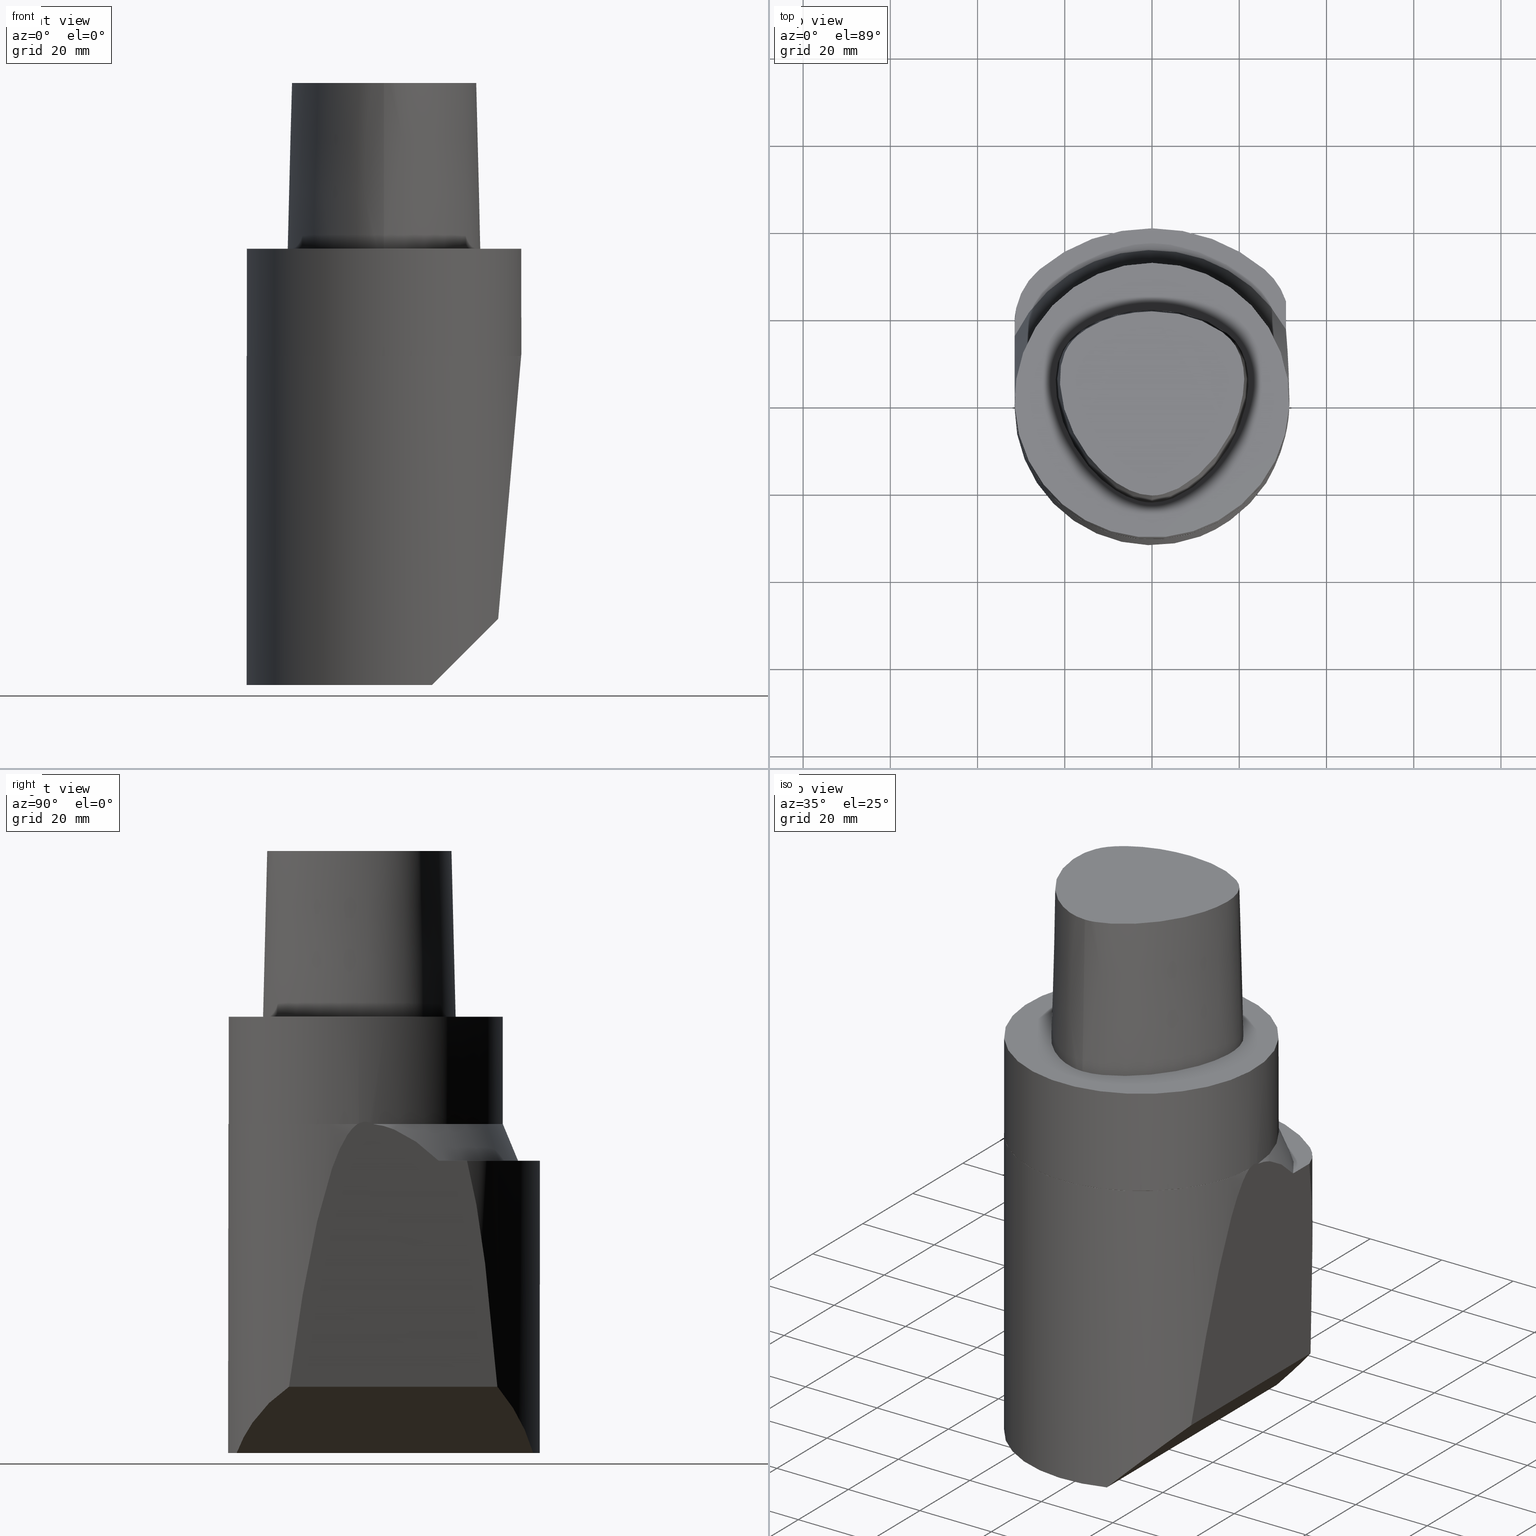
[diagram: canonical four-view strip — front | top / right | iso, engineering-drawing reading convention]
A machine part, canonical four-view strip (front | top / right | iso — engineering-drawing reading convention). The complete STEP part file that produces these views, byte-faithful:
ISO-10303-21;
HEADER;
FILE_DESCRIPTION((''),'1');
FILE_NAME('T:/21_DXF\X2\30C730FC30BF4F5C621057FA6E96\X0\/C6-180-BH20L-32100.stp','2017-05-03T05:13:16',(''),(''),'Spatial Interop R21 SP3','Kubotek KeyCreator 2011 V10.0.2 (22737)',' ');
FILE_SCHEMA(('automotive_design'));
ENDSEC;
DATA;
#1=MECHANICAL_DESIGN_GEOMETRIC_PRESENTATION_REPRESENTATION(' ',(#10,#11,#12,#13,#14,#15,#16,#17,#18,#19,#20,#21,#22,#23,#24,#25,#26,#27,#28,#29,#30,#31,#32,#33,#34,#35,#36,#37,#38,#39,#40,#41,#42,#43,#44,#45,#46,#47,#48,#49,#50,#51,#52,#53,#54,#55,#56,#57,#58,#59,#60,#61,#62,#63,#64,#65,#66,#67,#68,#69,#70,#71,#72,#73,#74,#75,#76,#77),#6);
#2=PRODUCT_DEFINITION_CONTEXT('',#78,'design');
#3=APPLICATION_PROTOCOL_DEFINITION('INTERNATIONAL STANDARD','automotive_design',1994,#78);
#4=PRODUCT_CATEGORY_RELATIONSHIP('NONE','NONE',#79,#80);
#5=SHAPE_DEFINITION_REPRESENTATION(#81,#82);
#6= (GEOMETRIC_REPRESENTATION_CONTEXT(3)GLOBAL_UNCERTAINTY_ASSIGNED_CONTEXT((#85))GLOBAL_UNIT_ASSIGNED_CONTEXT((#87,#88,#89))REPRESENTATION_CONTEXT('NONE','WORKSPACE'));
#10=STYLED_ITEM('',(#91,#92),#93);
#11=STYLED_ITEM('',(#94,#95),#96);
#12=STYLED_ITEM('',(#97),#98);
#13=STYLED_ITEM('',(#99,#100),#101);
#14=STYLED_ITEM('',(#102),#103);
#15=STYLED_ITEM('',(#104),#105);
#16=STYLED_ITEM('',(#106),#107);
#17=STYLED_ITEM('',(#108),#109);
#18=STYLED_ITEM('',(#110,#111),#112);
#19=STYLED_ITEM('',(#113),#114);
#20=STYLED_ITEM('',(#115),#116);
#21=STYLED_ITEM('',(#117,#118),#119);
#22=STYLED_ITEM('',(#120),#121);
#23=STYLED_ITEM('',(#122),#123);
#24=STYLED_ITEM('',(#124),#125);
#25=STYLED_ITEM('',(#126),#127);
#26=STYLED_ITEM('',(#128),#129);
#27=STYLED_ITEM('',(#130,#131),#132);
#28=STYLED_ITEM('',(#133,#134),#135);
#29=STYLED_ITEM('',(#136,#137),#138);
#30=STYLED_ITEM('',(#139),#140);
#31=STYLED_ITEM('',(#141),#142);
#32=STYLED_ITEM('',(#143,#144),#145);
#33=STYLED_ITEM('',(#146),#147);
#34=STYLED_ITEM('',(#148),#149);
#35=STYLED_ITEM('',(#150),#151);
#36=STYLED_ITEM('',(#152),#153);
#37=STYLED_ITEM('',(#154),#155);
#38=STYLED_ITEM('',(#156),#157);
#39=STYLED_ITEM('',(#158),#159);
#40=STYLED_ITEM('',(#160),#161);
#41=STYLED_ITEM('',(#162),#163);
#42=STYLED_ITEM('',(#164,#165),#166);
#43=STYLED_ITEM('',(#167),#168);
#44=STYLED_ITEM('',(#169,#170),#171);
#45=STYLED_ITEM('',(#172,#173),#174);
#46=STYLED_ITEM('',(#175),#176);
#47=STYLED_ITEM('',(#177,#178),#179);
#48=STYLED_ITEM('',(#180,#181),#182);
#49=STYLED_ITEM('',(#183),#184);
#50=STYLED_ITEM('',(#185),#186);
#51=STYLED_ITEM('',(#187),#188);
#52=STYLED_ITEM('',(#189),#190);
#53=STYLED_ITEM('',(#191),#192);
#54=STYLED_ITEM('',(#193,#194),#195);
#55=STYLED_ITEM('',(#196),#197);
#56=STYLED_ITEM('',(#198),#199);
#57=STYLED_ITEM('',(#200,#201),#202);
#58=STYLED_ITEM('',(#203),#204);
#59=STYLED_ITEM('',(#205),#206);
#60=STYLED_ITEM('',(#207),#208);
#61=STYLED_ITEM('',(#209),#210);
#62=STYLED_ITEM('',(#211,#212),#213);
#63=STYLED_ITEM('',(#214,#215),#216);
#64=STYLED_ITEM('',(#217),#218);
#65=STYLED_ITEM('',(#219,#220),#221);
#66=STYLED_ITEM('',(#222),#223);
#67=STYLED_ITEM('',(#224),#225);
#68=STYLED_ITEM('',(#226),#227);
#69=STYLED_ITEM('',(#228,#229),#230);
#70=STYLED_ITEM('',(#231),#232);
#71=STYLED_ITEM('',(#233),#234);
#72=STYLED_ITEM('',(#235),#236);
#73=STYLED_ITEM('',(#237),#238);
#74=STYLED_ITEM('',(#239),#240);
#75=STYLED_ITEM('',(#241),#242);
#76=STYLED_ITEM('',(#243,#244),#245);
#77=STYLED_ITEM('',(#246),#247);
#78=APPLICATION_CONTEXT(' ');
#79=PRODUCT_CATEGORY('part','NONE');
#80=PRODUCT_RELATED_PRODUCT_CATEGORY('detail',' ',(#248));
#81=PRODUCT_DEFINITION_SHAPE('NONE','NONE',#249);
#82=ADVANCED_BREP_SHAPE_REPRESENTATION('240[2]',(#135,#250),#6);
#85=UNCERTAINTY_MEASURE_WITH_UNIT(LENGTH_MEASURE(1.0E-006),#87,'','');
#87= (CONVERSION_BASED_UNIT('MILLIMETRE',#253)LENGTH_UNIT()NAMED_UNIT(#256));
#88= (NAMED_UNIT(#258)PLANE_ANGLE_UNIT()SI_UNIT($,.RADIAN.));
#89= (NAMED_UNIT(#258)SOLID_ANGLE_UNIT()SI_UNIT($,.STERADIAN.));
#91=PRESENTATION_STYLE_ASSIGNMENT((#264));
#92=PRESENTATION_STYLE_ASSIGNMENT((#265));
#93=ADVANCED_FACE('240[2]',(#266),#267,.T.);
#94=PRESENTATION_STYLE_ASSIGNMENT((#268));
#95=PRESENTATION_STYLE_ASSIGNMENT((#269));
#96=ADVANCED_FACE('240[2]',(#270),#271,.T.);
#97=PRESENTATION_STYLE_ASSIGNMENT((#272));
#98=EDGE_CURVE('240[2]',#273,#273,#274,.T.);
#99=PRESENTATION_STYLE_ASSIGNMENT((#275));
#100=PRESENTATION_STYLE_ASSIGNMENT((#276));
#101=ADVANCED_FACE('240[2]',(#277),#278,.F.);
#102=PRESENTATION_STYLE_ASSIGNMENT((#279));
#103=EDGE_CURVE('240[2]',#280,#281,#282,.T.);
#104=PRESENTATION_STYLE_ASSIGNMENT((#283));
#105=EDGE_CURVE('240[2]',#284,#285,#286,.T.);
#106=PRESENTATION_STYLE_ASSIGNMENT((#287));
#107=EDGE_CURVE('240[2]',#288,#289,#290,.T.);
#108=PRESENTATION_STYLE_ASSIGNMENT((#291));
#109=EDGE_CURVE('240[2]',#292,#293,#294,.T.);
#110=PRESENTATION_STYLE_ASSIGNMENT((#295));
#111=PRESENTATION_STYLE_ASSIGNMENT((#296));
#112=ADVANCED_FACE('240[2]',(#297),#298,.F.);
#113=PRESENTATION_STYLE_ASSIGNMENT((#299));
#114=EDGE_CURVE('240[2]',#300,#301,#302,.F.);
#115=PRESENTATION_STYLE_ASSIGNMENT((#303));
#116=EDGE_CURVE('240[2]',#304,#292,#305,.T.);
#117=PRESENTATION_STYLE_ASSIGNMENT((#306));
#118=PRESENTATION_STYLE_ASSIGNMENT((#307));
#119=ADVANCED_FACE('240[2]',(#308),#309,.T.);
#120=PRESENTATION_STYLE_ASSIGNMENT((#310));
#121=EDGE_CURVE('240[2]',#311,#312,#313,.T.);
#122=PRESENTATION_STYLE_ASSIGNMENT((#314));
#123=EDGE_CURVE('240[2]',#315,#316,#317,.T.);
#124=PRESENTATION_STYLE_ASSIGNMENT((#318));
#125=EDGE_CURVE('240[2]',#319,#320,#321,.T.);
#126=PRESENTATION_STYLE_ASSIGNMENT((#322));
#127=EDGE_CURVE('240[2]',#311,#323,#324,.T.);
#128=PRESENTATION_STYLE_ASSIGNMENT((#325));
#129=EDGE_CURVE('240[2]',#326,#315,#327,.T.);
#130=PRESENTATION_STYLE_ASSIGNMENT((#328));
#131=PRESENTATION_STYLE_ASSIGNMENT((#329));
#132=ADVANCED_FACE('240[2]',(#330),#331,.F.);
#133=PRESENTATION_STYLE_ASSIGNMENT((#332));
#134=PRESENTATION_STYLE_ASSIGNMENT((#333));
#135=MANIFOLD_SOLID_BREP('240[2]',#334);
#136=PRESENTATION_STYLE_ASSIGNMENT((#335));
#137=PRESENTATION_STYLE_ASSIGNMENT((#336));
#138=ADVANCED_FACE('240[2]',(#337),#338,.T.);
#139=PRESENTATION_STYLE_ASSIGNMENT((#339));
#140=EDGE_CURVE('240[2]',#312,#293,#340,.T.);
#141=PRESENTATION_STYLE_ASSIGNMENT((#341));
#142=EDGE_CURVE('240[2]',#342,#343,#344,.T.);
#143=PRESENTATION_STYLE_ASSIGNMENT((#345));
#144=PRESENTATION_STYLE_ASSIGNMENT((#346));
#145=ADVANCED_FACE('240[2]',(#347),#348,.T.);
#146=PRESENTATION_STYLE_ASSIGNMENT((#349));
#147=EDGE_CURVE('240[2]',#350,#311,#351,.T.);
#148=PRESENTATION_STYLE_ASSIGNMENT((#352));
#149=EDGE_CURVE('240[2]',#353,#354,#355,.F.);
#150=PRESENTATION_STYLE_ASSIGNMENT((#356));
#151=EDGE_CURVE('240[2]',#300,#342,#357,.T.);
#152=PRESENTATION_STYLE_ASSIGNMENT((#358));
#153=EDGE_CURVE('240[2]',#359,#323,#360,.F.);
#154=PRESENTATION_STYLE_ASSIGNMENT((#361));
#155=EDGE_CURVE('240[2]',#293,#284,#362,.T.);
#156=PRESENTATION_STYLE_ASSIGNMENT((#363));
#157=EDGE_CURVE('240[2]',#354,#319,#364,.T.);
#158=PRESENTATION_STYLE_ASSIGNMENT((#365));
#159=EDGE_CURVE('240[2]',#326,#366,#367,.T.);
#160=PRESENTATION_STYLE_ASSIGNMENT((#368));
#161=EDGE_CURVE('240[2]',#280,#354,#369,.F.);
#162=PRESENTATION_STYLE_ASSIGNMENT((#370));
#163=EDGE_CURVE('240[2]',#288,#371,#372,.T.);
#164=PRESENTATION_STYLE_ASSIGNMENT((#373));
#165=PRESENTATION_STYLE_ASSIGNMENT((#374));
#166=ADVANCED_FACE('240[2]',(#375),#376,.T.);
#167=PRESENTATION_STYLE_ASSIGNMENT((#377));
#168=EDGE_CURVE('240[2]',#378,#281,#379,.F.);
#169=PRESENTATION_STYLE_ASSIGNMENT((#380));
#170=PRESENTATION_STYLE_ASSIGNMENT((#381));
#171=ADVANCED_FACE('240[2]',(#382),#383,.T.);
#172=PRESENTATION_STYLE_ASSIGNMENT((#384));
#173=PRESENTATION_STYLE_ASSIGNMENT((#385));
#174=ADVANCED_FACE('240[2]',(#386),#387,.F.);
#175=PRESENTATION_STYLE_ASSIGNMENT((#388));
#176=EDGE_CURVE('240[2]',#366,#389,#390,.T.);
#177=PRESENTATION_STYLE_ASSIGNMENT((#391));
#178=PRESENTATION_STYLE_ASSIGNMENT((#392));
#179=ADVANCED_FACE('240[2]',(#393),#394,.T.);
#180=PRESENTATION_STYLE_ASSIGNMENT((#395));
#181=PRESENTATION_STYLE_ASSIGNMENT((#396));
#182=ADVANCED_FACE('240[2]',(#397),#398,.T.);
#183=PRESENTATION_STYLE_ASSIGNMENT((#399));
#184=EDGE_CURVE('240[2]',#285,#319,#400,.T.);
#185=PRESENTATION_STYLE_ASSIGNMENT((#401));
#186=EDGE_CURVE('240[2]',#389,#316,#402,.T.);
#187=PRESENTATION_STYLE_ASSIGNMENT((#403));
#188=EDGE_CURVE('240[2]',#320,#289,#404,.T.);
#189=PRESENTATION_STYLE_ASSIGNMENT((#405));
#190=EDGE_CURVE('240[2]',#371,#280,#406,.T.);
#191=PRESENTATION_STYLE_ASSIGNMENT((#407));
#192=EDGE_CURVE('240[2]',#350,#281,#408,.T.);
#193=PRESENTATION_STYLE_ASSIGNMENT((#409));
#194=PRESENTATION_STYLE_ASSIGNMENT((#410));
#195=ADVANCED_FACE('240[2]',(#411,#412),#413,.F.);
#196=PRESENTATION_STYLE_ASSIGNMENT((#414));
#197=EDGE_CURVE('240[2]',#342,#359,#415,.T.);
#198=PRESENTATION_STYLE_ASSIGNMENT((#416));
#199=EDGE_CURVE('240[2]',#378,#353,#417,.T.);
#200=PRESENTATION_STYLE_ASSIGNMENT((#418));
#201=PRESENTATION_STYLE_ASSIGNMENT((#419));
#202=ADVANCED_FACE('240[2]',(#420),#421,.T.);
#203=PRESENTATION_STYLE_ASSIGNMENT((#422));
#204=EDGE_CURVE('240[2]',#292,#320,#423,.T.);
#205=PRESENTATION_STYLE_ASSIGNMENT((#424));
#206=EDGE_CURVE('240[2]',#343,#301,#425,.T.);
#207=PRESENTATION_STYLE_ASSIGNMENT((#426));
#208=EDGE_CURVE('240[2]',#326,#389,#427,.T.);
#209=PRESENTATION_STYLE_ASSIGNMENT((#428));
#210=EDGE_CURVE('240[2]',#316,#366,#429,.T.);
#211=PRESENTATION_STYLE_ASSIGNMENT((#430));
#212=PRESENTATION_STYLE_ASSIGNMENT((#431));
#213=ADVANCED_FACE('240[2]',(#432),#433,.T.);
#214=PRESENTATION_STYLE_ASSIGNMENT((#434));
#215=PRESENTATION_STYLE_ASSIGNMENT((#435));
#216=ADVANCED_FACE('240[2]',(#436),#437,.F.);
#217=PRESENTATION_STYLE_ASSIGNMENT((#438));
#218=EDGE_CURVE('240[2]',#353,#285,#439,.T.);
#219=PRESENTATION_STYLE_ASSIGNMENT((#440));
#220=PRESENTATION_STYLE_ASSIGNMENT((#441));
#221=ADVANCED_FACE('240[2]',(#442,#443),#444,.T.);
#222=PRESENTATION_STYLE_ASSIGNMENT((#445));
#223=EDGE_CURVE('240[2]',#446,#284,#447,.T.);
#224=PRESENTATION_STYLE_ASSIGNMENT((#448));
#225=EDGE_CURVE('240[2]',#323,#343,#449,.T.);
#226=PRESENTATION_STYLE_ASSIGNMENT((#450));
#227=EDGE_CURVE('240[2]',#301,#312,#451,.F.);
#228=PRESENTATION_STYLE_ASSIGNMENT((#452));
#229=PRESENTATION_STYLE_ASSIGNMENT((#453));
#230=ADVANCED_FACE('240[2]',(#454),#455,.T.);
#231=PRESENTATION_STYLE_ASSIGNMENT((#456));
#232=EDGE_CURVE('240[2]',#289,#288,#457,.T.);
#233=PRESENTATION_STYLE_ASSIGNMENT((#458));
#234=EDGE_CURVE('240[2]',#371,#304,#459,.T.);
#235=PRESENTATION_STYLE_ASSIGNMENT((#460));
#236=EDGE_CURVE('240[2]',#446,#300,#461,.T.);
#237=PRESENTATION_STYLE_ASSIGNMENT((#462));
#238=EDGE_CURVE('240[2]',#446,#378,#463,.T.);
#239=PRESENTATION_STYLE_ASSIGNMENT((#464));
#240=EDGE_CURVE('240[2]',#359,#350,#465,.T.);
#241=PRESENTATION_STYLE_ASSIGNMENT((#466));
#242=EDGE_CURVE('240[2]',#311,#304,#467,.T.);
#243=PRESENTATION_STYLE_ASSIGNMENT((#468));
#244=PRESENTATION_STYLE_ASSIGNMENT((#469));
#245=ADVANCED_FACE('240[2]',(#470),#471,.T.);
#246=PRESENTATION_STYLE_ASSIGNMENT((#472));
#247=EDGE_CURVE('240[2]',#315,#326,#473,.T.);
#248=PRODUCT('240[2]','240[2]','PART-240[2]-DESC',(#474));
#249=PRODUCT_DEFINITION('NONE','NONE',#475,#2);
#250=AXIS2_PLACEMENT_3D('',#476,#477,#478);
#253=LENGTH_MEASURE_WITH_UNIT(LENGTH_MEASURE(1.0),#479);
#256=DIMENSIONAL_EXPONENTS(1.0,0.0,0.0,0.0,0.0,0.0,0.0);
#258=DIMENSIONAL_EXPONENTS(0.0,0.0,0.0,0.0,0.0,0.0,0.0);
#264=SURFACE_STYLE_USAGE(.BOTH.,#480);
#265=CURVE_STYLE('',#481,POSITIVE_LENGTH_MEASURE(1000.0),#482);
#266=FACE_OUTER_BOUND('',#483,.T.);
#267=PLANE('',#484);
#268=SURFACE_STYLE_USAGE(.BOTH.,#485);
#269=CURVE_STYLE('',#486,POSITIVE_LENGTH_MEASURE(1000.0),#487);
#270=FACE_OUTER_BOUND('',#488,.T.);
#271=PLANE('',#489);
#272=CURVE_STYLE('',#490,POSITIVE_LENGTH_MEASURE(1000.0),#491);
#273=VERTEX_POINT('',#492);
#274=CIRCLE('',#493,31.4924999999997);
#275=SURFACE_STYLE_USAGE(.BOTH.,#494);
#276=CURVE_STYLE('',#495,POSITIVE_LENGTH_MEASURE(1000.0),#496);
#277=FACE_OUTER_BOUND('',#497,.T.);
#278=PLANE('',#498);
#279=CURVE_STYLE('',#499,POSITIVE_LENGTH_MEASURE(1000.0),#500);
#280=VERTEX_POINT('',#501);
#281=VERTEX_POINT('',#502);
#282=ELLIPSE('',#503,44.5477272147523,31.5000000000001);
#283=CURVE_STYLE('',#504,POSITIVE_LENGTH_MEASURE(1000.0),#505);
#284=VERTEX_POINT('',#506);
#285=VERTEX_POINT('',#507);
#286=CIRCLE('',#508,40.0000000000001);
#287=CURVE_STYLE('',#509,POSITIVE_LENGTH_MEASURE(1000.0),#510);
#288=VERTEX_POINT('',#511);
#289=VERTEX_POINT('',#512);
#290=CIRCLE('',#513,31.4924999999999);
#291=CURVE_STYLE('',#514,POSITIVE_LENGTH_MEASURE(1000.0),#515);
#292=VERTEX_POINT('',#516);
#293=VERTEX_POINT('',#517);
#294=LINE('',#518,#519);
#295=SURFACE_STYLE_USAGE(.BOTH.,#520);
#296=CURVE_STYLE('',#521,POSITIVE_LENGTH_MEASURE(1000.0),#522);
#297=FACE_OUTER_BOUND('',#523,.T.);
#298=PLANE('',#524);
#299=CURVE_STYLE('',#525,POSITIVE_LENGTH_MEASURE(1000.0),#526);
#300=VERTEX_POINT('',#527);
#301=VERTEX_POINT('',#528);
#302=LINE('',#529,#530);
#303=CURVE_STYLE('',#531,POSITIVE_LENGTH_MEASURE(1000.0),#532);
#304=VERTEX_POINT('',#533);
#305=(B_SPLINE_CURVE(2,(#535,#536,#537),.UNSPECIFIED.,.F.,.F.)B_SPLINE_CURVE_WITH_KNOTS((3,3),(17.4185009161124,34.8370018322249),.UNSPECIFIED.)RATIONAL_B_SPLINE_CURVE((1.05555555555563,1.05555555555563,1.0))BOUNDED_CURVE()REPRESENTATION_ITEM('')GEOMETRIC_REPRESENTATION_ITEM()CURVE());
#306=SURFACE_STYLE_USAGE(.BOTH.,#544);
#307=CURVE_STYLE('',#545,POSITIVE_LENGTH_MEASURE(1000.0),#546);
#308=FACE_OUTER_BOUND('',#547,.T.);
#309=CYLINDRICAL_SURFACE('',#548,15.9999999999997);
#310=CURVE_STYLE('',#549,POSITIVE_LENGTH_MEASURE(1000.0),#550);
#311=VERTEX_POINT('',#551);
#312=VERTEX_POINT('',#552);
#313=LINE('',#553,#554);
#314=CURVE_STYLE('',#555,POSITIVE_LENGTH_MEASURE(1000.0),#556);
#315=VERTEX_POINT('',#557);
#316=VERTEX_POINT('',#558);
#317=LINE('',#559,#560);
#318=CURVE_STYLE('',#561,POSITIVE_LENGTH_MEASURE(1000.0),#562);
#319=VERTEX_POINT('',#563);
#320=VERTEX_POINT('',#564);
#321=LINE('',#565,#566);
#322=CURVE_STYLE('',#567,POSITIVE_LENGTH_MEASURE(1000.0),#568);
#323=VERTEX_POINT('',#569);
#324=LINE('',#570,#571);
#325=CURVE_STYLE('',#572,POSITIVE_LENGTH_MEASURE(1000.0),#573);
#326=VERTEX_POINT('',#574);
#327=B_SPLINE_CURVE_WITH_KNOTS('',3,(#575,#576,#577,#578,#579,#580,#581,#582,#583,#584,#585,#586,#587,#588,#589,#590),.UNSPECIFIED.,.F.,.F.,(4,1,1,1,1,1,1,1,1,1,1,1,1,4),(0.0,0.447924670568964,0.9388024242536,1.50591409090711,2.07314340012323,2.72424957442464,3.2253501842849,3.80982102049476,4.34867996267067,4.85900173381144,5.37972031856977,6.03459825488646,6.61113557741484,6.61513393087381),.UNSPECIFIED.);
#328=SURFACE_STYLE_USAGE(.BOTH.,#591);
#329=CURVE_STYLE('',#592,POSITIVE_LENGTH_MEASURE(1000.0),#593);
#330=FACE_OUTER_BOUND('',#594,.T.);
#331=B_SPLINE_SURFACE_WITH_KNOTS('',3,3,((#595,#596,#597,#598),(#599,#600,#601,#602),(#603,#604,#605,#606),(#607,#608,#609,#610),(#611,#612,#613,#614),(#615,#616,#617,#618),(#619,#620,#621,#622),(#623,#624,#625,#626),(#627,#628,#629,#630),(#631,#632,#633,#634),(#635,#636,#637,#638),(#639,#640,#641,#642),(#643,#644,#645,#646),(#647,#648,#649,#650),(#651,#652,#653,#654),(#655,#656,#657,#658),(#659,#660,#661,#662),(#663,#664,#665,#666)),.UNSPECIFIED.,.F.,.F.,.F.,(4,1,1,1,1,1,1,1,1,2,1,1,1,1,4),(4,4),(-6.6151339308743,-6.20168806019465,-5.78824218951501,-5.37479631883537,-4.96135044815572,-4.13445870679644,-3.30756696543715,-2.89412109475751,-2.48067522407786,-2.06722935339822,-1.65378348271857,-1.24033761203893,-0.826891741359287,-0.413445870679644,0.0),(-3.8,0.0),.UNSPECIFIED.);
#332=SURFACE_STYLE_USAGE(.BOTH.,#667);
#333=CURVE_STYLE('',#668,POSITIVE_LENGTH_MEASURE(1000.0),#669);
#334=CLOSED_SHELL('',(#195,#179,#93,#101,#202,#119,#216,#230,#171,#182,#96,#213,#145,#138,#245,#221,#174,#132,#166,#112));
#335=SURFACE_STYLE_USAGE(.BOTH.,#670);
#336=CURVE_STYLE('',#671,POSITIVE_LENGTH_MEASURE(1000.0),#672);
#337=FACE_OUTER_BOUND('',#673,.T.);
#338=PLANE('',#674);
#339=CURVE_STYLE('',#675,POSITIVE_LENGTH_MEASURE(1000.0),#676);
#340=LINE('',#677,#678);
#341=CURVE_STYLE('',#679,POSITIVE_LENGTH_MEASURE(1000.0),#680);
#342=VERTEX_POINT('',#681);
#343=VERTEX_POINT('',#682);
#344=LINE('',#683,#684);
#345=SURFACE_STYLE_USAGE(.BOTH.,#685);
#346=CURVE_STYLE('',#686,POSITIVE_LENGTH_MEASURE(1000.0),#687);
#347=FACE_OUTER_BOUND('',#688,.T.);
#348=CYLINDRICAL_SURFACE('',#689,31.5000000000001);
#349=CURVE_STYLE('',#690,POSITIVE_LENGTH_MEASURE(1000.0),#691);
#350=VERTEX_POINT('',#692);
#351=LINE('',#693,#694);
#352=CURVE_STYLE('',#695,POSITIVE_LENGTH_MEASURE(1000.0),#696);
#353=VERTEX_POINT('',#697);
#354=VERTEX_POINT('',#698);
#355=ELLIPSE('',#699,22.6274169979689,15.9999999999997);
#356=CURVE_STYLE('',#700,POSITIVE_LENGTH_MEASURE(1000.0),#701);
#357=LINE('',#702,#703);
#358=CURVE_STYLE('',#704,POSITIVE_LENGTH_MEASURE(1000.0),#705);
#359=VERTEX_POINT('',#706);
#360=LINE('',#707,#708);
#361=CURVE_STYLE('',#709,POSITIVE_LENGTH_MEASURE(1000.0),#710);
#362=CIRCLE('',#711,16.0000000000003);
#363=CURVE_STYLE('',#712,POSITIVE_LENGTH_MEASURE(1000.0),#713);
#364=ELLIPSE('',#714,183.579411930717,15.9999999999997);
#365=CURVE_STYLE('',#715,POSITIVE_LENGTH_MEASURE(1000.0),#716);
#366=VERTEX_POINT('',#717);
#367=LINE('',#718,#719);
#368=CURVE_STYLE('',#720,POSITIVE_LENGTH_MEASURE(1000.0),#721);
#369=LINE('',#722,#723);
#370=CURVE_STYLE('',#724,POSITIVE_LENGTH_MEASURE(1000.0),#725);
#371=VERTEX_POINT('',#726);
#372=(B_SPLINE_CURVE(2,(#728,#729,#730),.UNSPECIFIED.,.F.,.F.)B_SPLINE_CURVE_WITH_KNOTS((3,3),(2.66387468098414E-012,0.190684739631489),.UNSPECIFIED.)RATIONAL_B_SPLINE_CURVE((1.0,1.00019183330553,1.0003794940894))BOUNDED_CURVE()REPRESENTATION_ITEM('')GEOMETRIC_REPRESENTATION_ITEM()CURVE());
#373=SURFACE_STYLE_USAGE(.BOTH.,#737);
#374=CURVE_STYLE('',#738,POSITIVE_LENGTH_MEASURE(1000.0),#739);
#375=FACE_OUTER_BOUND('',#740,.T.);
#376=CONICAL_SURFACE('',#741,1.0,0.0249931148600041);
#377=CURVE_STYLE('',#742,POSITIVE_LENGTH_MEASURE(1000.0),#743);
#378=VERTEX_POINT('',#744);
#379=LINE('',#745,#746);
#380=SURFACE_STYLE_USAGE(.BOTH.,#747);
#381=CURVE_STYLE('',#748,POSITIVE_LENGTH_MEASURE(1000.0),#749);
#382=FACE_OUTER_BOUND('',#750,.T.);
#383=PLANE('',#751);
#384=SURFACE_STYLE_USAGE(.BOTH.,#752);
#385=CURVE_STYLE('',#753,POSITIVE_LENGTH_MEASURE(1000.0),#754);
#386=FACE_OUTER_BOUND('',#755,.T.);
#387=B_SPLINE_SURFACE_WITH_KNOTS('',3,3,((#756,#757,#758,#759),(#760,#761,#762,#763),(#764,#765,#766,#767),(#768,#769,#770,#771),(#772,#773,#774,#775),(#776,#777,#778,#779),(#780,#781,#782,#783),(#784,#785,#786,#787),(#788,#789,#790,#791),(#792,#793,#794,#795),(#796,#797,#798,#799),(#800,#801,#802,#803),(#804,#805,#806,#807),(#808,#809,#810,#811),(#812,#813,#814,#815),(#816,#817,#818,#819),(#820,#821,#822,#823)),.UNSPECIFIED.,.F.,.F.,.F.,(4,1,1,1,1,1,1,1,1,1,1,1,1,1,4),(4,4),(-13.2302678617486,-12.816821991069,-12.4033761203893,-11.9899302497097,-11.57648437903,-11.1630385083504,-10.9563155730106,-10.7495926376707,-10.3361467669911,-9.92270089631145,-9.09580915495216,-8.26891741359287,-7.44202567223358,-7.02857980155394,-6.6151339308743),(-3.8,0.0),.UNSPECIFIED.);
#388=CURVE_STYLE('',#824,POSITIVE_LENGTH_MEASURE(1000.0),#825);
#389=VERTEX_POINT('',#826);
#390=CIRCLE('',#827,0.949936168379101);
#391=SURFACE_STYLE_USAGE(.BOTH.,#828);
#392=CURVE_STYLE('',#829,POSITIVE_LENGTH_MEASURE(1000.0),#830);
#393=FACE_OUTER_BOUND('',#831,.T.);
#394=PLANE('',#832);
#395=SURFACE_STYLE_USAGE(.BOTH.,#833);
#396=CURVE_STYLE('',#834,POSITIVE_LENGTH_MEASURE(1000.0),#835);
#397=FACE_OUTER_BOUND('',#836,.T.);
#398=PLANE('',#837);
#399=CURVE_STYLE('',#838,POSITIVE_LENGTH_MEASURE(1000.0),#839);
#400=CIRCLE('',#840,15.9999999999997);
#401=CURVE_STYLE('',#841,POSITIVE_LENGTH_MEASURE(1000.0),#842);
#402=B_SPLINE_CURVE_WITH_KNOTS('',3,(#843,#844,#845,#846,#847,#848,#849,#850,#851,#852,#853,#854,#855,#856,#857,#858,#859,#860,#861,#862,#863,#864,#865,#866,#867,#868,#869,#870,#871,#872),.UNSPECIFIED.,.F.,.F.,(4,2,2,2,2,2,2,2,2,2,2,2,2,2,4),(0.0,0.576808184119594,1.15361636823919,1.43293031700624,1.7122442657733,1.99155821454036,2.27087216330741,2.85949822796588,3.15381126029511,3.44812429262434,4.36563722999232,5.28315016736029,5.8130055067864,6.21406971883035,6.6151339308743),.UNSPECIFIED.);
#403=CURVE_STYLE('',#873,POSITIVE_LENGTH_MEASURE(1000.0),#874);
#404=(B_SPLINE_CURVE(2,(#876,#877,#878),.UNSPECIFIED.,.F.,.F.)B_SPLINE_CURVE_WITH_KNOTS((3,3),(0.000528695465248167,17.5336100710716),.UNSPECIFIED.)RATIONAL_B_SPLINE_CURVE((1.00000106372792,1.01763868971882,1.0))BOUNDED_CURVE()REPRESENTATION_ITEM('')GEOMETRIC_REPRESENTATION_ITEM()CURVE());
#405=CURVE_STYLE('',#885,POSITIVE_LENGTH_MEASURE(1000.0),#886);
#406=ELLIPSE('',#887,361.421967238607,31.5000000000001);
#407=CURVE_STYLE('',#888,POSITIVE_LENGTH_MEASURE(1000.0),#889);
#408=CIRCLE('',#890,31.5000000000001);
#409=SURFACE_STYLE_USAGE(.BOTH.,#891);
#410=CURVE_STYLE('',#892,POSITIVE_LENGTH_MEASURE(1000.0),#893);
#411=FACE_OUTER_BOUND('',#894,.T.);
#412=FACE_BOUND('',#895,.T.);
#413=PLANE('',#896);
#414=CURVE_STYLE('',#897,POSITIVE_LENGTH_MEASURE(1000.0),#898);
#415=LINE('',#899,#900);
#416=CURVE_STYLE('',#901,POSITIVE_LENGTH_MEASURE(1000.0),#902);
#417=ELLIPSE('',#903,56.5685424949234,40.0);
#418=SURFACE_STYLE_USAGE(.BOTH.,#904);
#419=CURVE_STYLE('',#905,POSITIVE_LENGTH_MEASURE(1000.0),#906);
#420=FACE_OUTER_BOUND('',#907,.T.);
#421=CYLINDRICAL_SURFACE('',#908,40.0);
#422=CURVE_STYLE('',#909,POSITIVE_LENGTH_MEASURE(1000.0),#910);
#423=CIRCLE('',#911,35.0000000000054);
#424=CURVE_STYLE('',#912,POSITIVE_LENGTH_MEASURE(1000.0),#913);
#425=LINE('',#914,#915);
#426=CURVE_STYLE('',#916,POSITIVE_LENGTH_MEASURE(1000.0),#917);
#427=LINE('',#918,#919);
#428=CURVE_STYLE('',#920,POSITIVE_LENGTH_MEASURE(1000.0),#921);
#429=B_SPLINE_CURVE_WITH_KNOTS('',3,(#922,#923,#924,#925,#926,#927,#928,#929,#930,#931,#932,#933,#934,#935,#936,#937,#938,#939,#940,#941,#942,#943,#944,#945,#946,#947,#948,#949,#950,#951,#952,#953),.UNSPECIFIED.,.F.,.F.,(4,2,2,2,2,2,2,2,2,2,2,2,2,2,2,4),(6.6151339308743,6.90353802293409,7.19194211499389,7.48034620705369,7.76875029911348,8.3273781966476,8.88600609418171,10.0632582234986,10.5220146921826,10.9807711608666,11.2101493952086,11.4395276295506,11.8982840982346,12.4281394376607,12.8292036497046,13.2302678617486),.UNSPECIFIED.);
#430=SURFACE_STYLE_USAGE(.BOTH.,#954);
#431=CURVE_STYLE('',#955,POSITIVE_LENGTH_MEASURE(1000.0),#956);
#432=FACE_OUTER_BOUND('',#957,.T.);
#433=CYLINDRICAL_SURFACE('',#958,16.0000000000003);
#434=SURFACE_STYLE_USAGE(.BOTH.,#959);
#435=CURVE_STYLE('',#960,POSITIVE_LENGTH_MEASURE(1000.0),#961);
#436=FACE_OUTER_BOUND('',#962,.T.);
#437=PLANE('',#963);
#438=CURVE_STYLE('',#964,POSITIVE_LENGTH_MEASURE(1000.0),#965);
#439=LINE('',#966,#967);
#440=SURFACE_STYLE_USAGE(.BOTH.,#968);
#441=CURVE_STYLE('',#969,POSITIVE_LENGTH_MEASURE(1000.0),#970);
#442=FACE_BOUND('',#971,.T.);
#443=FACE_BOUND('',#972,.T.);
#444=CYLINDRICAL_SURFACE('',#973,31.4924999999998);
#445=CURVE_STYLE('',#974,POSITIVE_LENGTH_MEASURE(1000.0),#975);
#446=VERTEX_POINT('',#976);
#447=LINE('',#977,#978);
#448=CURVE_STYLE('',#979,POSITIVE_LENGTH_MEASURE(1000.0),#980);
#449=LINE('',#981,#982);
#450=CURVE_STYLE('',#983,POSITIVE_LENGTH_MEASURE(1000.0),#984);
#451=CIRCLE('',#985,16.0000000000003);
#452=SURFACE_STYLE_USAGE(.BOTH.,#986);
#453=CURVE_STYLE('',#987,POSITIVE_LENGTH_MEASURE(1000.0),#988);
#454=FACE_OUTER_BOUND('',#989,.T.);
#455=PLANE('',#990);
#456=CURVE_STYLE('',#991,POSITIVE_LENGTH_MEASURE(1000.0),#992);
#457=ELLIPSE('',#993,361.335914389261,31.4924999999998);
#458=CURVE_STYLE('',#994,POSITIVE_LENGTH_MEASURE(1000.0),#995);
#459=CIRCLE('',#996,31.5000000000001);
#460=CURVE_STYLE('',#997,POSITIVE_LENGTH_MEASURE(1000.0),#998);
#461=CIRCLE('',#999,16.0000000000003);
#462=CURVE_STYLE('',#1000,POSITIVE_LENGTH_MEASURE(1000.0),#1001);
#463=CIRCLE('',#1002,40.0);
#464=CURVE_STYLE('',#1003,POSITIVE_LENGTH_MEASURE(1000.0),#1004);
#465=LINE('',#1005,#1006);
#466=CURVE_STYLE('',#1007,POSITIVE_LENGTH_MEASURE(1000.0),#1008);
#467=LINE('',#1009,#1010);
#468=SURFACE_STYLE_USAGE(.BOTH.,#1011);
#469=CURVE_STYLE('',#1012,POSITIVE_LENGTH_MEASURE(1000.0),#1013);
#470=FACE_OUTER_BOUND('',#1014,.T.);
#471=CONICAL_SURFACE('',#1015,33.2462500000026,0.394554409968623);
#472=CURVE_STYLE('',#1016,POSITIVE_LENGTH_MEASURE(1000.0),#1017);
#473=B_SPLINE_CURVE_WITH_KNOTS('',3,(#1018,#1019,#1020,#1021,#1022,#1023,#1024,#1025,#1026,#1027,#1028,#1029,#1030,#1031,#1032,#1033),.UNSPECIFIED.,.F.,.F.,(4,1,1,1,1,1,1,1,1,1,1,1,1,4),(6.61513393087489,6.99917207152274,7.48193246986995,7.96289324787093,8.45540287038584,9.10291653679981,9.67129810936083,10.1618749681153,10.6358867802489,11.1080734988593,11.6043706019633,12.09451993853,12.6985979284494,13.2302678617486),.UNSPECIFIED.);
#474=PRODUCT_CONTEXT('',#78,'mechanical');
#475=PRODUCT_DEFINITION_FORMATION_WITH_SPECIFIED_SOURCE(' ','NONE',#248,.NOT_KNOWN.);
#476=CARTESIAN_POINT('',(0.0,0.0,0.0));
#477=DIRECTION('',(0.0,0.0,1.0));
#478=DIRECTION('',(1.0,0.0,0.0));
#479= (NAMED_UNIT(#256)LENGTH_UNIT()SI_UNIT(.MILLI.,.METRE.));
#480=SURFACE_SIDE_STYLE('',(#1035));
#481=DRAUGHTING_PRE_DEFINED_CURVE_FONT('continuous');
#482=COLOUR_RGB('',0.0,1.0,1.0);
#483=EDGE_LOOP('',(#1036,#1037,#1038,#1039,#1040,#1041,#1042));
#484=AXIS2_PLACEMENT_3D('',#1043,#1044,#1045);
#485=SURFACE_SIDE_STYLE('',(#1046));
#486=DRAUGHTING_PRE_DEFINED_CURVE_FONT('continuous');
#487=COLOUR_RGB('',0.0,1.0,1.0);
#488=EDGE_LOOP('',(#1047,#1048,#1049,#1050,#1051));
#489=AXIS2_PLACEMENT_3D('',#1052,#1053,#1054);
#490=DRAUGHTING_PRE_DEFINED_CURVE_FONT('continuous');
#491=COLOUR_RGB('',0.0,1.0,1.0);
#492=CARTESIAN_POINT('',(-3.85671893221476E-015,31.4924999999997,0.0));
#493=AXIS2_PLACEMENT_3D('',#1055,#1056,#1057);
#494=SURFACE_SIDE_STYLE('',(#1058));
#495=DRAUGHTING_PRE_DEFINED_CURVE_FONT('continuous');
#496=COLOUR_RGB('',0.0,1.0,1.0);
#497=EDGE_LOOP('',(#1059,#1060,#1061,#1062,#1063,#1064,#1065));
#498=AXIS2_PLACEMENT_3D('',#1066,#1067,#1068);
#499=DRAUGHTING_PRE_DEFINED_CURVE_FONT('continuous');
#500=COLOUR_RGB('',0.0,1.0,1.0);
#501=CARTESIAN_POINT('',(26.175122523835,-17.5246386799338,-84.824877124049));
#502=CARTESIAN_POINT('',(10.9999998252791,-29.5169443514038,-99.9999998226051));
#503=AXIS2_PLACEMENT_3D('',#1069,#1070,#1071);
#504=DRAUGHTING_PRE_DEFINED_CURVE_FONT('continuous');
#505=COLOUR_RGB('',0.0,1.0,1.0);
#506=CARTESIAN_POINT('',(-25.833333333334,30.539137003014,-32.9999999999964));
#507=CARTESIAN_POINT('',(25.8333333333352,30.5391370030156,-32.9999999999964));
#508=AXIS2_PLACEMENT_3D('',#1072,#1073,#1074);
#509=DRAUGHTING_PRE_DEFINED_CURVE_FONT('continuous');
#510=COLOUR_RGB('',0.0,1.0,1.0);
#511=CARTESIAN_POINT('',(31.4461826443,-1.70738201680771,-24.5763842561333));
#512=CARTESIAN_POINT('',(31.4461826443,1.70738201680771,-24.5763842561333));
#513=AXIS2_PLACEMENT_3D('',#1075,#1076,#1077);
#514=DRAUGHTING_PRE_DEFINED_CURVE_FONT('continuous');
#515=COLOUR_RGB('',0.0,1.0,1.0);
#516=CARTESIAN_POINT('',(-31.5000000000005,15.2561463024038,-32.9999999999964));
#517=CARTESIAN_POINT('',(-31.5000000000005,18.323482201808,-32.9999999999964));
#518=CARTESIAN_POINT('',(-31.5000000000006,23.3308705504531,-32.9999999999964));
#519=VECTOR('',#1078,1.0);
#520=SURFACE_SIDE_STYLE('',(#1079));
#521=DRAUGHTING_PRE_DEFINED_CURVE_FONT('continuous');
#522=COLOUR_RGB('',0.0,1.0,1.0);
#523=EDGE_LOOP('',(#1080,#1081));
#524=AXIS2_PLACEMENT_3D('',#1082,#1083,#1084);
#525=DRAUGHTING_PRE_DEFINED_CURVE_FONT('continuous');
#526=COLOUR_RGB('',0.0,1.0,1.0);
#527=CARTESIAN_POINT('',(-31.4119228276271,20.0,-99.9999998226051));
#528=CARTESIAN_POINT('',(-31.4119228276272,20.0,-34.9999998226051));
#529=CARTESIAN_POINT('',(-31.4119228276271,20.0000000000003,-244.999999822605));
#530=VECTOR('',#1085,1.0);
#531=DRAUGHTING_PRE_DEFINED_CURVE_FONT('continuous');
#532=COLOUR_RGB('',0.0,1.0,1.0);
#533=CARTESIAN_POINT('',(-31.5000000000003,-3.97903932025656E-013,-24.5943962641397));
#535=CARTESIAN_POINT('',(-31.5000000000003,-3.9252811527481E-013,-24.5943962641397));
#536=CARTESIAN_POINT('',(-31.5000000000004,7.22659561692732,-24.5943962641397));
#537=CARTESIAN_POINT('',(-31.5000000000005,15.2561463024037,-32.9999999999964));
#544=SURFACE_SIDE_STYLE('',(#1086));
#545=DRAUGHTING_PRE_DEFINED_CURVE_FONT('continuous');
#546=COLOUR_RGB('',0.0,1.0,1.0);
#547=EDGE_LOOP('',(#1087,#1088,#1089,#1090));
#548=AXIS2_PLACEMENT_3D('',#1091,#1092,#1093);
#549=DRAUGHTING_PRE_DEFINED_CURVE_FONT('continuous');
#550=COLOUR_RGB('',0.0,1.0,1.0);
#551=CARTESIAN_POINT('',(-31.5000000000002,-5.15078432459043E-013,-34.9999998226051));
#552=CARTESIAN_POINT('',(-31.5000000000005,18.3234822018079,-34.9999998226051));
#553=CARTESIAN_POINT('',(-31.5000000000003,4.48087055045164,-34.9999998226051));
#554=VECTOR('',#1094,1.0);
#555=DRAUGHTING_PRE_DEFINED_CURVE_FONT('continuous');
#556=COLOUR_RGB('',0.0,1.0,1.0);
#557=CARTESIAN_POINT('',(-0.038736923393866,-22.5191997536361,38.0));
#558=CARTESIAN_POINT('',(-0.04359356758149,-23.4691235068931,0.0));
#559=CARTESIAN_POINT('',(-0.038736923393866,-22.5191997536361,38.0));
#560=VECTOR('',#1095,38.0118715498723);
#561=DRAUGHTING_PRE_DEFINED_CURVE_FONT('continuous');
#562=COLOUR_RGB('',0.0,1.0,1.0);
#563=CARTESIAN_POINT('',(30.7092117608135,23.2913668235292,-32.9999999999964));
#564=CARTESIAN_POINT('',(30.7092117608135,16.7911974864777,-32.9999999999964));
#565=CARTESIAN_POINT('',(30.7092117608135,-40.7499999999987,-32.9999999999964));
#566=VECTOR('',#1096,1.0);
#567=DRAUGHTING_PRE_DEFINED_CURVE_FONT('continuous');
#568=COLOUR_RGB('',0.0,1.0,1.0);
#569=CARTESIAN_POINT('',(-11.4999999999999,-2.31863700469042E-013,-34.9999998226051));
#570=CARTESIAN_POINT('',(-20.4996023943969,-4.24805002703997E-013,-34.9999998226051));
#571=VECTOR('',#1097,1.0);
#572=DRAUGHTING_PRE_DEFINED_CURVE_FONT('continuous');
#573=COLOUR_RGB('',0.0,1.0,1.0);
#574=CARTESIAN_POINT('',(0.001218547003662,19.7276821925089,38.0));
#575=CARTESIAN_POINT('',(0.001218547003662,19.7276821925089,38.0));
#576=CARTESIAN_POINT('',(1.49408492138443,19.6585333605309,38.0));
#577=CARTESIAN_POINT('',(4.62297391420352,19.513604770166,38.0));
#578=CARTESIAN_POINT('',(9.56160616752212,18.4291575730197,38.0));
#579=CARTESIAN_POINT('',(14.5427684976927,16.2697452580488,38.0));
#580=CARTESIAN_POINT('',(19.4315563551602,12.5302108980807,38.0));
#581=CARTESIAN_POINT('',(21.306358833612,6.76352894547076,38.0));
#582=CARTESIAN_POINT('',(21.0724946936277,0.957075236984038,38.0));
#583=CARTESIAN_POINT('',(19.7876470880144,-4.34628503581652,38.0));
#584=CARTESIAN_POINT('',(17.5396999600095,-9.33314444653089,38.0));
#585=CARTESIAN_POINT('',(14.645447733857,-13.7185760345629,38.0));
#586=CARTESIAN_POINT('',(10.7996726536643,-17.856257282137,38.0));
#587=CARTESIAN_POINT('',(6.00479510196376,-21.2687382067675,38.0));
#588=CARTESIAN_POINT('',(1.90747171908525,-22.5250621415864,38.0));
#589=CARTESIAN_POINT('',(-0.025424107066464,-22.5192678176378,38.0));
#590=CARTESIAN_POINT('',(-0.038736923394311,-22.519199753636,38.0));
#591=SURFACE_SIDE_STYLE('',(#1098));
#592=DRAUGHTING_PRE_DEFINED_CURVE_FONT('continuous');
#593=COLOUR_RGB('',0.0,1.0,1.0);
#594=EDGE_LOOP('',(#1099,#1100,#1101,#1102));
#595=CARTESIAN_POINT('',(-0.038736923393866,-22.5191997536361,38.0));
#596=CARTESIAN_POINT('',(-0.04035580478973,-22.8358410047159,25.3333333333066));
#597=CARTESIAN_POINT('',(-0.041974686185626,-23.1524822558133,12.6666666666934));
#598=CARTESIAN_POINT('',(-0.04359356758149,-23.4691235068931,0.0));
#599=CARTESIAN_POINT('',(1.33786123484754,-22.5261650259856,38.0));
#600=CARTESIAN_POINT('',(1.38240731367927,-22.8430399310626,25.3333333333066));
#601=CARTESIAN_POINT('',(1.42695339249092,-23.1599147815484,12.6666666666934));
#602=CARTESIAN_POINT('',(1.4714994713963,-23.4767895315797,0.0));
#603=CARTESIAN_POINT('',(4.08909358431842,-21.9268839879558,38.0));
#604=CARTESIAN_POINT('',(4.20580731135515,-22.2249725500078,25.3333333333066));
#605=CARTESIAN_POINT('',(4.32252104640446,-22.5230611651922,12.6666666666934));
#606=CARTESIAN_POINT('',(4.43923476371401,-22.821149804767,0.0));
#607=CARTESIAN_POINT('',(7.8333083619947,-19.9973514861616,38.0));
#608=CARTESIAN_POINT('',(8.00568301809614,-20.2649260859405,25.3333333333066));
#609=CARTESIAN_POINT('',(8.1780576640789,-20.532500564315,12.6666666666934));
#610=CARTESIAN_POINT('',(8.35043230079961,-20.8000751253325,0.0));
#611=CARTESIAN_POINT('',(11.1035071147626,-17.450554957873,38.0));
#612=CARTESIAN_POINT('',(11.3173048160562,-17.6855739222454,25.3333333333066));
#613=CARTESIAN_POINT('',(11.5311025116181,-17.9205928617968,12.6666666666934));
#614=CARTESIAN_POINT('',(11.744900222602,-18.1556117874078,0.0));
#615=CARTESIAN_POINT('',(14.9379535189057,-13.461132049697,38.0));
#616=CARTESIAN_POINT('',(15.191622410671,-13.6542981711372,25.3333333333066));
#617=CARTESIAN_POINT('',(15.4452913389853,-13.8474645327131,12.6666666666934));
#618=CARTESIAN_POINT('',(15.6989602501314,-14.0406306929147,0.0));
#619=CARTESIAN_POINT('',(18.6681263017223,-7.59391757463204,38.0));
#620=CARTESIAN_POINT('',(18.9571800800711,-7.73136168081928,25.3333333333066));
#621=CARTESIAN_POINT('',(19.2462337287194,-7.86880572399774,12.6666666666934));
#622=CARTESIAN_POINT('',(19.5352875070682,-8.00624990770787,0.0));
#623=CARTESIAN_POINT('',(20.7857899858339,-0.952862819790525,38.0));
#624=CARTESIAN_POINT('',(21.0973808305434,-1.02218087467418,25.3333333333066));
#625=CARTESIAN_POINT('',(21.408971677436,-1.09149899580772,12.6666666666934));
#626=CARTESIAN_POINT('',(21.7205626190491,-1.16081708945282,0.0));
#627=CARTESIAN_POINT('',(21.2911760556836,4.5469215763113,38.0));
#628=CARTESIAN_POINT('',(21.610337904926,4.54783292082248,25.3333333333066));
#629=CARTESIAN_POINT('',(21.9294998290918,4.54874426225691,12.6666666666934));
#630=CARTESIAN_POINT('',(22.2486616783342,4.54965558738736,0.0));
#631=CARTESIAN_POINT('',(20.7345309521958,8.74909381391006,38.0));
#632=CARTESIAN_POINT('',(21.0445680426217,8.83349432450556,25.3333333333066));
#633=CARTESIAN_POINT('',(21.3546050933631,8.91789488065068,12.6666666666934));
#634=CARTESIAN_POINT('',(21.6646421256468,9.00229539124618,0.0));
#635=CARTESIAN_POINT('',(19.5531512296439,11.3174844040833,38.0));
#636=CARTESIAN_POINT('',(19.8336219699984,11.4710077674213,25.3333333333066));
#637=CARTESIAN_POINT('',(20.1140927680763,11.6245311337623,12.6666666666934));
#638=CARTESIAN_POINT('',(20.3945635471922,11.7780544971003,0.0));
#639=CARTESIAN_POINT('',(17.9100913688793,13.524027510437,38.0));
#640=CARTESIAN_POINT('',(18.1375785458768,13.7487051053655,25.3333333333066));
#641=CARTESIAN_POINT('',(18.365065665211,13.9733826973296,12.6666666666934));
#642=CARTESIAN_POINT('',(18.5925528034471,14.1980602922581,0.0));
#643=CARTESIAN_POINT('',(15.7996349656398,15.3762170634413,38.0));
#644=CARTESIAN_POINT('',(15.9739761051783,15.6434029846179,25.3333333333066));
#645=CARTESIAN_POINT('',(16.1483172726872,15.9105889315134,12.6666666666934));
#646=CARTESIAN_POINT('',(16.3226584122258,16.1777748720707,0.0));
#647=CARTESIAN_POINT('',(12.1175640002064,17.3825162484012,38.0));
#648=CARTESIAN_POINT('',(12.2475895903055,17.6724842099619,25.3333333333066));
#649=CARTESIAN_POINT('',(12.3776152070492,17.9624521925696,12.6666666666934));
#650=CARTESIAN_POINT('',(12.5076407874579,18.2524201541303,0.0));
#651=CARTESIAN_POINT('',(8.21761151654222,18.7588585989994,38.0));
#652=CARTESIAN_POINT('',(8.30099497910627,19.0656105427881,25.3333333333066));
#653=CARTESIAN_POINT('',(8.38437843913309,19.3723624535439,12.6666666666934));
#654=CARTESIAN_POINT('',(8.46776192107786,19.679114377952,0.0));
#655=CARTESIAN_POINT('',(4.13466093881225,19.5396850837055,38.0));
#656=CARTESIAN_POINT('',(4.16658562115465,19.8557172636973,25.3333333333066));
#657=CARTESIAN_POINT('',(4.19851029939059,20.1717494367229,12.6666666666934));
#658=CARTESIAN_POINT('',(4.23043497193604,20.487781597334,0.0));
#659=CARTESIAN_POINT('',(1.37917220403684,19.6638560588908,38.0));
#660=CARTESIAN_POINT('',(1.39382511685176,19.98016223565,25.3333333333066));
#661=CARTESIAN_POINT('',(1.40847802945569,20.296468399885,12.6666666666934));
#662=CARTESIAN_POINT('',(1.42313094248379,20.6127745766442,0.0));
#663=CARTESIAN_POINT('',(0.001218547003662,19.7276821925089,38.0));
#664=CARTESIAN_POINT('',(0.015869696232855,20.043988446791,25.3333333333066));
#665=CARTESIAN_POINT('',(0.030520845462092,20.3602947010464,12.6666666666934));
#666=CARTESIAN_POINT('',(0.045171994691285,20.6766009553285,0.0));
#667=SURFACE_SIDE_STYLE('',(#1103));
#668=DRAUGHTING_PRE_DEFINED_CURVE_FONT('continuous');
#669=COLOUR_RGB('',0.0,1.0,1.0);
#670=SURFACE_SIDE_STYLE('',(#1104));
#671=DRAUGHTING_PRE_DEFINED_CURVE_FONT('continuous');
#672=COLOUR_RGB('',0.0,1.0,1.0);
#673=EDGE_LOOP('',(#1105,#1106,#1107,#1108,#1109));
#674=AXIS2_PLACEMENT_3D('',#1110,#1111,#1112);
#675=DRAUGHTING_PRE_DEFINED_CURVE_FONT('continuous');
#676=COLOUR_RGB('',0.0,1.0,1.0);
#677=CARTESIAN_POINT('',(-31.5000000000005,18.3234822018079,-244.999999822605));
#678=VECTOR('',#1113,1.0);
#679=DRAUGHTING_PRE_DEFINED_CURVE_FONT('continuous');
#680=COLOUR_RGB('',0.0,1.0,1.0);
#681=CARTESIAN_POINT('',(-11.5000000000002,20.0000000000005,-99.9999998226051));
#682=CARTESIAN_POINT('',(-11.5000000000002,20.0000000000005,-34.9999998226051));
#683=CARTESIAN_POINT('',(-11.5000000000002,20.0000000000005,-244.999999822605));
#684=VECTOR('',#1114,1.0);
#685=SURFACE_SIDE_STYLE('',(#1115));
#686=DRAUGHTING_PRE_DEFINED_CURVE_FONT('continuous');
#687=COLOUR_RGB('',0.0,1.0,1.0);
#688=EDGE_LOOP('',(#1116,#1117,#1118,#1119,#1120,#1121));
#689=AXIS2_PLACEMENT_3D('',#1122,#1123,#1124);
#690=DRAUGHTING_PRE_DEFINED_CURVE_FONT('continuous');
#691=COLOUR_RGB('',0.0,1.0,1.0);
#692=CARTESIAN_POINT('',(-31.5000000000001,-6.68634846303844E-013,-99.9999998226051));
#693=CARTESIAN_POINT('',(-31.5000000000001,-6.86392221660319E-013,-244.999999822605));
#694=VECTOR('',#1125,1.0);
#695=DRAUGHTING_PRE_DEFINED_CURVE_FONT('continuous');
#696=COLOUR_RGB('',0.0,1.0,1.0);
#697=CARTESIAN_POINT('',(25.833333333333,30.5391370030147,-85.1666663145511));
#698=CARTESIAN_POINT('',(26.1751225238349,30.2416095337812,-84.8248771240493));
#699=AXIS2_PLACEMENT_3D('',#1126,#1127,#1128);
#700=DRAUGHTING_PRE_DEFINED_CURVE_FONT('continuous');
#701=COLOUR_RGB('',0.0,1.0,1.0);
#702=CARTESIAN_POINT('',(-10.7279807069069,20.0000000000005,-99.9999998226051));
#703=VECTOR('',#1129,1.0);
#704=DRAUGHTING_PRE_DEFINED_CURVE_FONT('continuous');
#705=COLOUR_RGB('',0.0,1.0,1.0);
#706=CARTESIAN_POINT('',(-11.5,-2.39812849879307E-013,-99.9999998226051));
#707=CARTESIAN_POINT('',(-11.5,-2.57837001338476E-013,-244.999999822605));
#708=VECTOR('',#1130,1.0);
#709=DRAUGHTING_PRE_DEFINED_CURVE_FONT('continuous');
#710=COLOUR_RGB('',0.0,1.0,1.0);
#711=AXIS2_PLACEMENT_3D('',#1131,#1132,#1133);
#712=DRAUGHTING_PRE_DEFINED_CURVE_FONT('continuous');
#713=COLOUR_RGB('',0.0,1.0,1.0);
#714=AXIS2_PLACEMENT_3D('',#1134,#1135,#1136);
#715=DRAUGHTING_PRE_DEFINED_CURVE_FONT('continuous');
#716=COLOUR_RGB('',0.0,1.0,1.0);
#717=CARTESIAN_POINT('',(-0.044682985379347,20.6765087343109,0.0));
#718=CARTESIAN_POINT('',(0.001218547003662,19.7276821925089,38.0));
#719=VECTOR('',#1137,38.0118715503078);
#720=DRAUGHTING_PRE_DEFINED_CURVE_FONT('continuous');
#721=COLOUR_RGB('',0.0,1.0,1.0);
#722=CARTESIAN_POINT('',(26.1751225238349,-119.0,-84.8248771240492));
#723=VECTOR('',#1138,1.0);
#724=DRAUGHTING_PRE_DEFINED_CURVE_FONT('continuous');
#725=COLOUR_RGB('',0.0,1.0,1.0);
#726=CARTESIAN_POINT('',(31.4446067977921,-1.86727162787003,-24.5943962641391));
#728=CARTESIAN_POINT('',(31.4461826443,-1.70738201680715,-24.5763842561333));
#729=CARTESIAN_POINT('',(31.445429963829,-1.7873193017907,-24.5849874332835));
#730=CARTESIAN_POINT('',(31.4446067977921,-1.86727162787002,-24.5943962641392));
#737=SURFACE_SIDE_STYLE('',(#1139));
#738=DRAUGHTING_PRE_DEFINED_CURVE_FONT('continuous');
#739=COLOUR_RGB('',0.0,1.0,1.0);
#740=EDGE_LOOP('',(#1140,#1141,#1142));
#741=AXIS2_PLACEMENT_3D('',#1143,#1144,#1145);
#742=DRAUGHTING_PRE_DEFINED_CURVE_FONT('continuous');
#743=COLOUR_RGB('',0.0,1.0,1.0);
#744=CARTESIAN_POINT('',(10.9999998252788,38.457769096034,-99.9999998226051));
#745=CARTESIAN_POINT('',(10.9999998252788,-49.5,-99.9999998226051));
#746=VECTOR('',#1146,1.0);
#747=SURFACE_SIDE_STYLE('',(#1147));
#748=DRAUGHTING_PRE_DEFINED_CURVE_FONT('continuous');
#749=COLOUR_RGB('',0.0,1.0,1.0);
#750=EDGE_LOOP('',(#1148,#1149,#1150,#1151));
#751=AXIS2_PLACEMENT_3D('',#1152,#1153,#1154);
#752=SURFACE_SIDE_STYLE('',(#1155));
#753=DRAUGHTING_PRE_DEFINED_CURVE_FONT('continuous');
#754=COLOUR_RGB('',0.0,1.0,1.0);
#755=EDGE_LOOP('',(#1156,#1157,#1158,#1159));
#756=CARTESIAN_POINT('',(0.001218367817519,19.7276822012873,38.0));
#757=CARTESIAN_POINT('',(-0.014082083248157,20.0439577123075,25.3333333333066));
#758=CARTESIAN_POINT('',(-0.029382534313671,20.3602332232908,12.6666666666934));
#759=CARTESIAN_POINT('',(-0.044682985379347,20.6765087343109,0.0));
#760=CARTESIAN_POINT('',(-1.37788651195108,19.6609652834875,38.0));
#761=CARTESIAN_POINT('',(-1.3931885827258,19.9772407169847,25.3333333333066));
#762=CARTESIAN_POINT('',(-1.40849065356095,20.2935162254648,12.6666666666934));
#763=CARTESIAN_POINT('',(-1.42379272427753,20.6097915814392,0.0));
#764=CARTESIAN_POINT('',(-4.135446440878,19.5347778787784,38.0));
#765=CARTESIAN_POINT('',(-4.16466278851883,19.8511031866125,25.3333333333066));
#766=CARTESIAN_POINT('',(-4.1938791526746,20.1674284644204,12.6666666666934));
#767=CARTESIAN_POINT('',(-4.2230955003445,20.4837538303966,0.0));
#768=CARTESIAN_POINT('',(-8.213607363795,18.7706026638736,38.0));
#769=CARTESIAN_POINT('',(-8.29980745008421,19.0767495109635,25.3333333333066));
#770=CARTESIAN_POINT('',(-8.38600751285747,19.3828964329996,12.6666666666934));
#771=CARTESIAN_POINT('',(-8.47220762821777,19.6890432607088,0.0));
#772=CARTESIAN_POINT('',(-12.1316338645671,17.3698624840857,38.0));
#773=CARTESIAN_POINT('',(-12.2591308270381,17.6610739397708,25.3333333333066));
#774=CARTESIAN_POINT('',(-12.3866278083543,17.9522853923553,12.6666666666934));
#775=CARTESIAN_POINT('',(-12.5141247708253,18.2434968480404,0.0));
#776=CARTESIAN_POINT('',(-15.7706546153679,15.3789501349612,38.0));
#777=CARTESIAN_POINT('',(-15.9483905900895,15.6437731794811,25.3333333333066));
#778=CARTESIAN_POINT('',(-16.1261265513272,15.9085961736944,12.6666666666934));
#779=CARTESIAN_POINT('',(-16.3038624872874,16.1734192182143,0.0));
#780=CARTESIAN_POINT('',(-18.4265894256284,13.0570022172893,38.0));
#781=CARTESIAN_POINT('',(-18.6659567517146,13.2725589420689,25.3333333333066));
#782=CARTESIAN_POINT('',(-18.9053240921419,13.4881156488541,12.6666666666934));
#783=CARTESIAN_POINT('',(-19.1446913988473,13.7036723639434,0.0));
#784=CARTESIAN_POINT('',(-19.8679958653038,10.6923771981998,38.0));
#785=CARTESIAN_POINT('',(-20.1559937048299,10.8287388264873,25.3333333333066));
#786=CARTESIAN_POINT('',(-20.4439915656177,10.965100461641,12.6666666666934));
#787=CARTESIAN_POINT('',(-20.7319894342149,11.1014620996188,0.0));
#788=CARTESIAN_POINT('',(-20.8470867582337,8.07149548576131,38.0));
#789=CARTESIAN_POINT('',(-21.1591164072431,8.14132775555392,25.3333333333066));
#790=CARTESIAN_POINT('',(-21.4711459821861,8.21116003697855,12.6666666666934));
#791=CARTESIAN_POINT('',(-21.7831756505763,8.28099229708081,0.0));
#792=CARTESIAN_POINT('',(-21.2693244256982,4.61157245650171,38.0));
#793=CARTESIAN_POINT('',(-21.5881576801997,4.6105997689982,25.3333333333066));
#794=CARTESIAN_POINT('',(-21.9069908544037,4.60962709346857,12.6666666666934));
#795=CARTESIAN_POINT('',(-22.2258240701438,4.60865440596506,0.0));
#796=CARTESIAN_POINT('',(-20.8071610855575,-0.912828649855193,38.0));
#797=CARTESIAN_POINT('',(-21.119311671178,-0.979640884839481,25.3333333333066));
#798=CARTESIAN_POINT('',(-21.4314624224461,-1.04645306732201,12.6666666666934));
#799=CARTESIAN_POINT('',(-21.7436130080666,-1.11326526354485,0.0));
#800=CARTESIAN_POINT('',(-18.6841935581315,-7.54428794252837,38.0));
#801=CARTESIAN_POINT('',(-18.9734452551861,-7.6809665891091,25.3333333333066));
#802=CARTESIAN_POINT('',(-19.2626970689956,-7.81764505382656,12.6666666666934));
#803=CARTESIAN_POINT('',(-19.5519487660502,-7.95432366164584,0.0));
#804=CARTESIAN_POINT('',(-14.2175552814,-14.5971504342323,38.0));
#805=CARTESIAN_POINT('',(-14.4641757465198,-14.8010930946929,25.3333333333066));
#806=CARTESIAN_POINT('',(-14.710796247264,-15.0050359737917,12.6666666666934));
#807=CARTESIAN_POINT('',(-14.9574167123838,-15.2089785567293,0.0));
#808=CARTESIAN_POINT('',(-9.0844808732933,-19.3179298129689,38.0));
#809=CARTESIAN_POINT('',(-9.27912152349017,-19.572866915557,25.3333333333066));
#810=CARTESIAN_POINT('',(-9.47376218971294,-19.827804295621,12.6666666666934));
#811=CARTESIAN_POINT('',(-9.66840283021945,-20.0827414369705,0.0));
#812=CARTESIAN_POINT('',(-4.17112919194182,-21.8987568152736,38.0));
#813=CARTESIAN_POINT('',(-4.28618163483998,-22.1973837173649,25.3333333333066));
#814=CARTESIAN_POINT('',(-4.40123406239433,-22.4960105163661,12.6666666666934));
#815=CARTESIAN_POINT('',(-4.51628650521788,-22.7946374572188,0.0));
#816=CARTESIAN_POINT('',(-1.41533654381097,-22.5120888467812,38.0));
#817=CARTESIAN_POINT('',(-1.46311520162011,-22.8284916374445,25.3333333333066));
#818=CARTESIAN_POINT('',(-1.51089385942236,-23.144894486341,12.6666666666934));
#819=CARTESIAN_POINT('',(-1.55867251738073,-23.4612972770043,0.0));
#820=CARTESIAN_POINT('',(-0.038736923393866,-22.5191997536361,38.0));
#821=CARTESIAN_POINT('',(-0.04035580478973,-22.8358410047159,25.3333333333066));
#822=CARTESIAN_POINT('',(-0.041974686185626,-23.1524822558133,12.6666666666934));
#823=CARTESIAN_POINT('',(-0.04359356758149,-23.4691235068931,0.0));
#824=DRAUGHTING_PRE_DEFINED_CURVE_FONT('continuous');
#825=COLOUR_RGB('',0.0,1.0,1.0);
#826=CARTESIAN_POINT('',(0.045171994691285,20.6766009553285,0.0));
#827=AXIS2_PLACEMENT_3D('',#1160,#1161,#1162);
#828=SURFACE_SIDE_STYLE('',(#1163));
#829=DRAUGHTING_PRE_DEFINED_CURVE_FONT('continuous');
#830=COLOUR_RGB('',0.0,1.0,1.0);
#831=EDGE_LOOP('',(#1164,#1165,#1166,#1167,#1168));
#832=AXIS2_PLACEMENT_3D('',#1169,#1170,#1171);
#833=SURFACE_SIDE_STYLE('',(#1172));
#834=DRAUGHTING_PRE_DEFINED_CURVE_FONT('continuous');
#835=COLOUR_RGB('',0.0,1.0,1.0);
#836=EDGE_LOOP('',(#1173,#1174,#1175,#1176));
#837=AXIS2_PLACEMENT_3D('',#1177,#1178,#1179);
#838=DRAUGHTING_PRE_DEFINED_CURVE_FONT('continuous');
#839=COLOUR_RGB('',0.0,1.0,1.0);
#840=AXIS2_PLACEMENT_3D('',#1180,#1181,#1182);
#841=DRAUGHTING_PRE_DEFINED_CURVE_FONT('continuous');
#842=COLOUR_RGB('',0.0,1.0,1.0);
#843=CARTESIAN_POINT('',(0.045171994691285,20.6766009553285,0.0));
#844=CARTESIAN_POINT('',(1.96758797023018,20.5875555983123,0.0));
#845=CARTESIAN_POINT('',(3.95342611673668,20.4850284912479,-1.421085E-014));
#846=CARTESIAN_POINT('',(7.86342529995983,19.7967909190733,7.105427E-015));
#847=CARTESIAN_POINT('',(9.79439573378639,19.2503426360022,-1.421085E-014));
#848=CARTESIAN_POINT('',(12.5351742003408,18.1332577991903,0.0));
#849=CARTESIAN_POINT('',(13.4106560097683,17.7191970550452,0.0));
#850=CARTESIAN_POINT('',(15.1227536857037,16.7802221286297,7.105427E-015));
#851=CARTESIAN_POINT('',(15.9615364355591,16.2592643918937,0.0));
#852=CARTESIAN_POINT('',(17.5597683566648,15.0665385774434,0.0));
#853=CARTESIAN_POINT('',(18.3143568572283,14.3955246024635,-7.105427E-015));
#854=CARTESIAN_POINT('',(19.638502795217,12.8665014798265,-7.105427E-015));
#855=CARTESIAN_POINT('',(20.1979602542332,11.999774776593,0.0));
#856=CARTESIAN_POINT('',(21.5622718142072,9.15853750369237,0.0));
#857=CARTESIAN_POINT('',(21.9947483544612,7.02185767378744,0.0));
#858=CARTESIAN_POINT('',(22.1134563193034,3.90325125553384,0.0));
#859=CARTESIAN_POINT('',(22.0668279345839,2.87928778574124,0.0));
#860=CARTESIAN_POINT('',(21.8551986681238,0.853042087412899,0.0));
#861=CARTESIAN_POINT('',(21.6926789478513,-0.149498515836233,-1.421085E-014));
#862=CARTESIAN_POINT('',(20.816421377794,-4.23736740865811,1.421085E-014));
#863=CARTESIAN_POINT('',(19.659579746308,-7.20863943907163,-1.421085E-014));
#864=CARTESIAN_POINT('',(16.574666895304,-12.7137973313948,0.0));
#865=CARTESIAN_POINT('',(14.6473715787034,-15.2481179483411,-7.105427E-015));
#866=CARTESIAN_POINT('',(11.050022952355,-18.7018400427945,7.105427E-015));
#867=CARTESIAN_POINT('',(9.61826302632357,-19.8571497088389,0.0));
#868=CARTESIAN_POINT('',(6.85491632421896,-21.5712784212,-1.421085E-014));
#869=CARTESIAN_POINT('',(5.58035985461548,-22.2135461215161,0.0));
#870=CARTESIAN_POINT('',(2.86743329636734,-23.1704091567902,0.0));
#871=CARTESIAN_POINT('',(1.42611943322398,-23.4766376606116,0.0));
#872=CARTESIAN_POINT('',(-0.04359356758149,-23.4691235068931,0.0));
#873=DRAUGHTING_PRE_DEFINED_CURVE_FONT('continuous');
#874=COLOUR_RGB('',0.0,1.0,1.0);
#876=CARTESIAN_POINT('',(30.7092117608135,16.7911974864776,-32.9999999999965));
#877=CARTESIAN_POINT('',(31.3781617006837,8.93144290927152,-25.3538671993512));
#878=CARTESIAN_POINT('',(31.4461826443,1.70738201680715,-24.5763842561333));
#885=DRAUGHTING_PRE_DEFINED_CURVE_FONT('continuous');
#886=COLOUR_RGB('',0.0,1.0,1.0);
#887=AXIS2_PLACEMENT_3D('',#1183,#1184,#1185);
#888=DRAUGHTING_PRE_DEFINED_CURVE_FONT('continuous');
#889=COLOUR_RGB('',0.0,1.0,1.0);
#890=AXIS2_PLACEMENT_3D('',#1186,#1187,#1188);
#891=SURFACE_SIDE_STYLE('',(#1189));
#892=DRAUGHTING_PRE_DEFINED_CURVE_FONT('continuous');
#893=COLOUR_RGB('',0.0,1.0,1.0);
#894=EDGE_LOOP('',(#1190));
#895=EDGE_LOOP('',(#1191,#1192,#1193));
#896=AXIS2_PLACEMENT_3D('',#1194,#1195,#1196);
#897=DRAUGHTING_PRE_DEFINED_CURVE_FONT('continuous');
#898=COLOUR_RGB('',0.0,1.0,1.0);
#899=CARTESIAN_POINT('',(-11.5000000000002,14.95,-99.9999998226051));
#900=VECTOR('',#1197,1.0);
#901=DRAUGHTING_PRE_DEFINED_CURVE_FONT('continuous');
#902=COLOUR_RGB('',0.0,1.0,1.0);
#903=AXIS2_PLACEMENT_3D('',#1198,#1199,#1200);
#904=SURFACE_SIDE_STYLE('',(#1201));
#905=DRAUGHTING_PRE_DEFINED_CURVE_FONT('continuous');
#906=COLOUR_RGB('',0.0,1.0,1.0);
#907=EDGE_LOOP('',(#1202,#1203,#1204,#1205,#1206));
#908=AXIS2_PLACEMENT_3D('',#1207,#1208,#1209);
#909=DRAUGHTING_PRE_DEFINED_CURVE_FONT('continuous');
#910=COLOUR_RGB('',0.0,1.0,1.0);
#911=AXIS2_PLACEMENT_3D('',#1210,#1211,#1212);
#912=DRAUGHTING_PRE_DEFINED_CURVE_FONT('continuous');
#913=COLOUR_RGB('',0.0,1.0,1.0);
#914=CARTESIAN_POINT('',(-11.5000000000002,20.0000000000005,-34.9999998226051));
#915=VECTOR('',#1213,1.0);
#916=DRAUGHTING_PRE_DEFINED_CURVE_FONT('continuous');
#917=COLOUR_RGB('',0.0,1.0,1.0);
#918=CARTESIAN_POINT('',(0.001218547003662,19.7276821925089,38.0));
#919=VECTOR('',#1214,38.0118715498723);
#920=DRAUGHTING_PRE_DEFINED_CURVE_FONT('continuous');
#921=COLOUR_RGB('',0.0,1.0,1.0);
#922=CARTESIAN_POINT('',(-0.04359356758149,-23.4691235068931,0.0));
#923=CARTESIAN_POINT('',(-1.1004598519742,-23.4637201011149,7.105427E-015));
#924=CARTESIAN_POINT('',(-2.14400887535539,-23.2973076591387,0.0));
#925=CARTESIAN_POINT('',(-4.1424681795584,-22.7592077909815,0.0));
#926=CARTESIAN_POINT('',(-5.09815205870591,-22.390397570418,-7.105427E-015));
#927=CARTESIAN_POINT('',(-6.9351099930747,-21.5078613163183,-7.105427E-015));
#928=CARTESIAN_POINT('',(-7.80351845767777,-20.9996631554928,-7.105427E-015));
#929=CARTESIAN_POINT('',(-9.46943987011575,-19.8886274331692,-7.105427E-015));
#930=CARTESIAN_POINT('',(-10.2666299015956,-19.2853057570752,-7.105427E-015));
#931=CARTESIAN_POINT('',(-12.5026318141948,-17.3963733278614,2.131628E-014));
#932=CARTESIAN_POINT('',(-13.8422909676271,-16.0046937991299,0.0));
#933=CARTESIAN_POINT('',(-16.2509822407142,-13.0101546997628,1.421085E-014));
#934=CARTESIAN_POINT('',(-17.3206577927156,-11.4078127381174,-7.105427E-015));
#935=CARTESIAN_POINT('',(-20.1948648257688,-6.17855164445771,-7.105427E-015));
#936=CARTESIAN_POINT('',(-21.5264998810762,-2.27044916431131,-7.105427E-015));
#937=CARTESIAN_POINT('',(-22.1083077940609,3.36511341978747,-7.105427E-015));
#938=CARTESIAN_POINT('',(-22.1437891560423,4.95691742010578,-7.105427E-015));
#939=CARTESIAN_POINT('',(-21.7438554055,8.21486313336421,-7.105427E-015));
#940=CARTESIAN_POINT('',(-21.2813238062713,9.87761881981491,0.0));
#941=CARTESIAN_POINT('',(-20.1794569882097,12.0317423962685,0.0));
#942=CARTESIAN_POINT('',(-19.7024138468366,12.7593191234763,-7.105427E-015));
#943=CARTESIAN_POINT('',(-18.6262164065722,14.0443851003557,-7.105427E-015));
#944=CARTESIAN_POINT('',(-18.0388107856225,14.6116679410871,0.0));
#945=CARTESIAN_POINT('',(-16.1284788612342,16.197117807416,7.105427E-015));
#946=CARTESIAN_POINT('',(-14.7618818860482,17.03003182658,0.0));
#947=CARTESIAN_POINT('',(-11.6856166176821,18.5458506425855,0.0));
#948=CARTESIAN_POINT('',(-9.96274972961394,19.1800623227596,0.0));
#949=CARTESIAN_POINT('',(-6.84723700488339,20.0025241142556,0.0));
#950=CARTESIAN_POINT('',(-5.4719505740624,20.2496312304465,0.0));
#951=CARTESIAN_POINT('',(-2.7387517037224,20.5467807312008,0.0));
#952=CARTESIAN_POINT('',(-1.38248716057628,20.6117898211938,0.0));
#953=CARTESIAN_POINT('',(-0.044682985379347,20.6765087343109,0.0));
#954=SURFACE_SIDE_STYLE('',(#1215));
#955=DRAUGHTING_PRE_DEFINED_CURVE_FONT('continuous');
#956=COLOUR_RGB('',0.0,1.0,1.0);
#957=EDGE_LOOP('',(#1216,#1217,#1218,#1219,#1220,#1221));
#958=AXIS2_PLACEMENT_3D('',#1222,#1223,#1224);
#959=SURFACE_SIDE_STYLE('',(#1225));
#960=DRAUGHTING_PRE_DEFINED_CURVE_FONT('continuous');
#961=COLOUR_RGB('',0.0,1.0,1.0);
#962=EDGE_LOOP('',(#1226,#1227,#1228,#1229,#1230,#1231));
#963=AXIS2_PLACEMENT_3D('',#1232,#1233,#1234);
#964=DRAUGHTING_PRE_DEFINED_CURVE_FONT('continuous');
#965=COLOUR_RGB('',0.0,1.0,1.0);
#966=CARTESIAN_POINT('',(25.833333333333,30.5391370030147,-244.999999822605));
#967=VECTOR('',#1235,1.0);
#968=SURFACE_SIDE_STYLE('',(#1236));
#969=DRAUGHTING_PRE_DEFINED_CURVE_FONT('continuous');
#970=COLOUR_RGB('',0.0,1.0,1.0);
#971=EDGE_LOOP('',(#1237,#1238));
#972=EDGE_LOOP('',(#1239));
#973=AXIS2_PLACEMENT_3D('',#1240,#1241,#1242);
#974=DRAUGHTING_PRE_DEFINED_CURVE_FONT('continuous');
#975=COLOUR_RGB('',0.0,1.0,1.0);
#976=CARTESIAN_POINT('',(-25.8333333333343,30.5391370030137,-99.9999998226051));
#977=CARTESIAN_POINT('',(-25.833333333334,30.539137003014,-244.999999822605));
#978=VECTOR('',#1243,1.0);
#979=DRAUGHTING_PRE_DEFINED_CURVE_FONT('continuous');
#980=COLOUR_RGB('',0.0,1.0,1.0);
#981=CARTESIAN_POINT('',(-11.4999999999999,-0.200000000000216,-34.9999998226051));
#982=VECTOR('',#1244,1.0);
#983=DRAUGHTING_PRE_DEFINED_CURVE_FONT('continuous');
#984=COLOUR_RGB('',0.0,1.0,1.0);
#985=AXIS2_PLACEMENT_3D('',#1245,#1246,#1247);
#986=SURFACE_SIDE_STYLE('',(#1248));
#987=DRAUGHTING_PRE_DEFINED_CURVE_FONT('continuous');
#988=COLOUR_RGB('',0.0,1.0,1.0);
#989=EDGE_LOOP('',(#1249,#1250,#1251,#1252));
#990=AXIS2_PLACEMENT_3D('',#1253,#1254,#1255);
#991=DRAUGHTING_PRE_DEFINED_CURVE_FONT('continuous');
#992=COLOUR_RGB('',0.0,1.0,1.0);
#993=AXIS2_PLACEMENT_3D('',#1256,#1257,#1258);
#994=DRAUGHTING_PRE_DEFINED_CURVE_FONT('continuous');
#995=COLOUR_RGB('',0.0,1.0,1.0);
#996=AXIS2_PLACEMENT_3D('',#1259,#1260,#1261);
#997=DRAUGHTING_PRE_DEFINED_CURVE_FONT('continuous');
#998=COLOUR_RGB('',0.0,1.0,1.0);
#999=AXIS2_PLACEMENT_3D('',#1262,#1263,#1264);
#1000=DRAUGHTING_PRE_DEFINED_CURVE_FONT('continuous');
#1001=COLOUR_RGB('',0.0,1.0,1.0);
#1002=AXIS2_PLACEMENT_3D('',#1265,#1266,#1267);
#1003=DRAUGHTING_PRE_DEFINED_CURVE_FONT('continuous');
#1004=COLOUR_RGB('',0.0,1.0,1.0);
#1005=CARTESIAN_POINT('',(-10.7499999999998,-2.23824056667614E-013,-99.9999998226051));
#1006=VECTOR('',#1268,1.0);
#1007=DRAUGHTING_PRE_DEFINED_CURVE_FONT('continuous');
#1008=COLOUR_RGB('',0.0,1.0,1.0);
#1009=CARTESIAN_POINT('',(-31.5000000000003,-4.2632564145606E-013,-244.999999822605));
#1010=VECTOR('',#1269,1.0);
#1011=SURFACE_SIDE_STYLE('',(#1270));
#1012=DRAUGHTING_PRE_DEFINED_CURVE_FONT('continuous');
#1013=COLOUR_RGB('',0.0,1.0,1.0);
#1014=EDGE_LOOP('',(#1271,#1272,#1273,#1274,#1275,#1276));
#1015=AXIS2_PLACEMENT_3D('',#1277,#1278,#1279);
#1016=DRAUGHTING_PRE_DEFINED_CURVE_FONT('continuous');
#1017=COLOUR_RGB('',0.0,1.0,1.0);
#1018=CARTESIAN_POINT('',(-0.038736923394311,-22.519199753636,38.0));
#1019=CARTESIAN_POINT('',(-1.31742058183662,-22.512662269405,38.0));
#1020=CARTESIAN_POINT('',(-4.2093773447498,-21.9116226439989,38.0));
#1021=CARTESIAN_POINT('',(-8.20895504542113,-19.7798683845067,38.0));
#1022=CARTESIAN_POINT('',(-11.9784633234593,-16.681663904162,38.0));
#1023=CARTESIAN_POINT('',(-15.5308821579362,-12.5807487594113,38.0));
#1024=CARTESIAN_POINT('',(-18.4566248438667,-7.64932246015528,38.0));
#1025=CARTESIAN_POINT('',(-20.4036090752029,-2.27012499825289,38.0));
#1026=CARTESIAN_POINT('',(-21.2357187429189,2.79891401173156,38.0));
#1027=CARTESIAN_POINT('',(-21.0811206267748,7.62543090736657,38.0));
#1028=CARTESIAN_POINT('',(-19.3383577336563,12.2772250726194,38.0));
#1029=CARTESIAN_POINT('',(-15.5796322014404,15.5799672120682,38.0));
#1030=CARTESIAN_POINT('',(-10.8392956074438,17.9834601687347,38.0));
#1031=CARTESIAN_POINT('',(-5.56068045850571,19.4586143858472,38.0));
#1032=CARTESIAN_POINT('',(-1.77223893711014,19.6418877095654,38.0));
#1033=CARTESIAN_POINT('',(0.001218367817519,19.7276822012873,38.0));
#1035=SURFACE_STYLE_FILL_AREA(#1280);
#1036=ORIENTED_EDGE('',*,*,#190,.T.);
#1037=ORIENTED_EDGE('',*,*,#161,.T.);
#1038=ORIENTED_EDGE('',*,*,#157,.T.);
#1039=ORIENTED_EDGE('',*,*,#125,.T.);
#1040=ORIENTED_EDGE('',*,*,#188,.T.);
#1041=ORIENTED_EDGE('',*,*,#232,.T.);
#1042=ORIENTED_EDGE('',*,*,#163,.T.);
#1043=CARTESIAN_POINT('',(29.0241438385504,-119.0,-52.2604144851689));
#1044=DIRECTION('',(0.996194698091746,1.11325164696239E-016,-0.0871557427476567));
#1045=DIRECTION('',(0.0,-1.0,-1.27731301675164E-015));
#1046=SURFACE_STYLE_FILL_AREA(#1281);
#1047=ORIENTED_EDGE('',*,*,#127,.F.);
#1048=ORIENTED_EDGE('',*,*,#121,.T.);
#1049=ORIENTED_EDGE('',*,*,#227,.F.);
#1050=ORIENTED_EDGE('',*,*,#206,.F.);
#1051=ORIENTED_EDGE('',*,*,#225,.F.);
#1052=CARTESIAN_POINT('',(-19.4992047887936,-0.200000000000387,-34.9999998226051));
#1053=DIRECTION('',(9.18338008663382E-049,-1.22464679914735E-016,-1.0));
#1054=DIRECTION('',(-1.0,-7.49879891330927E-033,0.0));
#1055=CARTESIAN_POINT('',(0.0,0.0,0.0));
#1056=DIRECTION('',(6.12323399573677E-017,-1.22464679914735E-016,-1.0));
#1057=DIRECTION('',(-1.22464679914735E-016,1.0,-1.22464679914735E-016));
#1058=SURFACE_STYLE_FILL_AREA(#1282);
#1059=ORIENTED_EDGE('',*,*,#151,.F.);
#1060=ORIENTED_EDGE('',*,*,#236,.F.);
#1061=ORIENTED_EDGE('',*,*,#238,.T.);
#1062=ORIENTED_EDGE('',*,*,#168,.T.);
#1063=ORIENTED_EDGE('',*,*,#192,.F.);
#1064=ORIENTED_EDGE('',*,*,#240,.F.);
#1065=ORIENTED_EDGE('',*,*,#197,.F.);
#1066=CARTESIAN_POINT('',(3.67394038657976E-015,20.0,-99.9999998226051));
#1067=DIRECTION('',(-6.12323399573677E-017,1.22464679914735E-016,1.0));
#1068=DIRECTION('',(0.0,-1.0,1.22464679914735E-016));
#1069=CARTESIAN_POINT('',(6.79678971370691E-015,0.0,-110.999999647884));
#1070=DIRECTION('',(0.707106781186542,-1.40316553605932E-030,-0.707106781186553));
#1071=DIRECTION('',(-0.707106781186553,-2.59786816870649E-016,-0.707106781186542));
#1072=CARTESIAN_POINT('',(2.02066721859292E-015,0.0,-32.9999999999964));
#1073=DIRECTION('',(6.12323399573677E-017,-1.22464679914735E-016,-1.0));
#1074=DIRECTION('',(-1.22464679914735E-016,1.0,-1.22464679914735E-016));
#1075=CARTESIAN_POINT('',(1.50486951569445E-015,0.0,-24.5763842561333));
#1076=DIRECTION('',(6.12323399573677E-017,-1.22464679914735E-016,-1.0));
#1077=DIRECTION('',(-1.22464679914735E-016,1.0,-1.22464679914735E-016));
#1078=DIRECTION('',(-1.25313328709615E-014,1.0,-1.22464679914736E-016));
#1079=SURFACE_STYLE_FILL_AREA(#1283);
#1080=ORIENTED_EDGE('',*,*,#129,.F.);
#1081=ORIENTED_EDGE('',*,*,#247,.F.);
#1082=CARTESIAN_POINT('',(-0.008647668684817,1.77491953635526,38.0));
#1083=DIRECTION('',(-0.0,-0.0,-1.0));
#1084=DIRECTION('',(-1.0,0.0,0.0));
#1085=DIRECTION('',(6.12323399573677E-017,-1.22464679914735E-016,-1.0));
#1086=SURFACE_STYLE_FILL_AREA(#1284);
#1087=ORIENTED_EDGE('',*,*,#157,.F.);
#1088=ORIENTED_EDGE('',*,*,#149,.F.);
#1089=ORIENTED_EDGE('',*,*,#218,.T.);
#1090=ORIENTED_EDGE('',*,*,#184,.T.);
#1091=CARTESIAN_POINT('',(15.5,18.323482201809,-244.999999822605));
#1092=DIRECTION('',(6.12323399573677E-017,-1.22464679914735E-016,-1.0));
#1093=DIRECTION('',(-1.0,-2.44929359829471E-016,-6.12323399573677E-017));
#1094=DIRECTION('',(-1.25313328709615E-014,1.0,-1.22464679914736E-016));
#1095=DIRECTION('',(-0.000127766510556,-0.024990186342461,-0.999687688361864));
#1096=DIRECTION('',(1.22464679914735E-016,-1.0,1.22464679914735E-016));
#1097=DIRECTION('',(1.0,2.1440865831655E-014,-2.62574877116841E-030));
#1098=SURFACE_STYLE_FILL_AREA(#1285);
#1099=ORIENTED_EDGE('',*,*,#186,.F.);
#1100=ORIENTED_EDGE('',*,*,#208,.F.);
#1101=ORIENTED_EDGE('',*,*,#129,.T.);
#1102=ORIENTED_EDGE('',*,*,#123,.T.);
#1103=SURFACE_STYLE_FILL_AREA(#1286);
#1104=SURFACE_STYLE_FILL_AREA(#1287);
#1105=ORIENTED_EDGE('',*,*,#109,.T.);
#1106=ORIENTED_EDGE('',*,*,#140,.F.);
#1107=ORIENTED_EDGE('',*,*,#121,.F.);
#1108=ORIENTED_EDGE('',*,*,#242,.T.);
#1109=ORIENTED_EDGE('',*,*,#116,.T.);
#1110=CARTESIAN_POINT('',(-31.5000000000004,9.16174110090378,-244.999999822605));
#1111=DIRECTION('',(-1.0,-1.25313328709615E-014,-6.12323399573662E-017));
#1112=DIRECTION('',(-6.12323399573662E-017,0.0,1.0));
#1113=DIRECTION('',(-6.12323399573677E-017,1.22464679914735E-016,1.0));
#1114=DIRECTION('',(-6.12323399573677E-017,1.22464679914735E-016,1.0));
#1115=SURFACE_STYLE_FILL_AREA(#1288);
#1116=ORIENTED_EDGE('',*,*,#242,.F.);
#1117=ORIENTED_EDGE('',*,*,#147,.F.);
#1118=ORIENTED_EDGE('',*,*,#192,.T.);
#1119=ORIENTED_EDGE('',*,*,#103,.F.);
#1120=ORIENTED_EDGE('',*,*,#190,.F.);
#1121=ORIENTED_EDGE('',*,*,#234,.T.);
#1122=CARTESIAN_POINT('',(1.50019232786928E-014,0.0,-244.999999822605));
#1123=DIRECTION('',(6.12323399573677E-017,-1.22464679914735E-016,-1.0));
#1124=DIRECTION('',(-1.0,-2.44929359829471E-016,-6.12323399573677E-017));
#1125=DIRECTION('',(-6.12323399573677E-017,1.22464679914735E-016,1.0));
#1126=CARTESIAN_POINT('',(15.5,18.323482201809,-95.499999647884));
#1127=DIRECTION('',(-0.707106781186542,1.237638486879E-030,0.707106781186553));
#1128=DIRECTION('',(-0.707106781186553,-2.59786816870649E-016,-0.707106781186542));
#1129=DIRECTION('',(1.0,2.2960407294654E-014,6.12323399573649E-017));
#1130=DIRECTION('',(6.12323399573676E-017,-1.22464679914736E-016,-1.0));
#1131=CARTESIAN_POINT('',(-15.5000000000002,18.3234822018082,-32.9999999999964));
#1132=DIRECTION('',(6.12323399573677E-017,-1.22464679914735E-016,-1.0));
#1133=DIRECTION('',(-1.0,-2.44929359829471E-016,-6.12323399573677E-017));
#1134=CARTESIAN_POINT('',(15.5,18.323482201809,-206.84208590987));
#1135=DIRECTION('',(0.996194698091746,1.11325164696239E-016,-0.0871557427476567));
#1136=DIRECTION('',(-0.0871557427476567,-1.43345665111208E-016,-0.996194698091746));
#1137=DIRECTION('',(-0.001207557810519,0.024961321374199,-0.999687688350411));
#1138=DIRECTION('',(1.22464679914735E-016,-1.0,1.22464679914735E-016));
#1139=SURFACE_STYLE_FILL_AREA(#1289);
#1140=ORIENTED_EDGE('',*,*,#176,.F.);
#1141=ORIENTED_EDGE('',*,*,#159,.F.);
#1142=ORIENTED_EDGE('',*,*,#208,.T.);
#1143=CARTESIAN_POINT('',(0.001218547003662,19.7276821925089,-2.00268782779425));
#1144=DIRECTION('',(0.0,-0.0,-1.0));
#1145=DIRECTION('',(0.046269895968506,0.99892897481606,0.0));
#1146=DIRECTION('',(-1.22464679914735E-016,1.0,-1.22464679914735E-016));
#1147=SURFACE_STYLE_FILL_AREA(#1290);
#1148=ORIENTED_EDGE('',*,*,#197,.T.);
#1149=ORIENTED_EDGE('',*,*,#153,.T.);
#1150=ORIENTED_EDGE('',*,*,#225,.T.);
#1151=ORIENTED_EDGE('',*,*,#142,.F.);
#1152=CARTESIAN_POINT('',(-11.5000000000001,9.90000000000012,-244.999999822605));
#1153=DIRECTION('',(-1.0,-1.41926178632825E-014,-6.12323399573659E-017));
#1154=DIRECTION('',(-6.12323399573659E-017,0.0,1.0));
#1155=SURFACE_STYLE_FILL_AREA(#1291);
#1156=ORIENTED_EDGE('',*,*,#210,.F.);
#1157=ORIENTED_EDGE('',*,*,#123,.F.);
#1158=ORIENTED_EDGE('',*,*,#247,.T.);
#1159=ORIENTED_EDGE('',*,*,#159,.T.);
#1160=CARTESIAN_POINT('',(0.001218547003662,19.7276821925089,0.0));
#1161=DIRECTION('',(0.0,0.0,-1.0));
#1162=DIRECTION('',(0.046269895968506,0.998928974816059,0.0));
#1163=SURFACE_STYLE_FILL_AREA(#1292);
#1164=ORIENTED_EDGE('',*,*,#199,.T.);
#1165=ORIENTED_EDGE('',*,*,#149,.T.);
#1166=ORIENTED_EDGE('',*,*,#161,.F.);
#1167=ORIENTED_EDGE('',*,*,#103,.T.);
#1168=ORIENTED_EDGE('',*,*,#168,.F.);
#1169=CARTESIAN_POINT('',(18.2149392136951,-119.0,-92.7850604341889));
#1170=DIRECTION('',(0.707106781186543,-1.22026921276375E-030,-0.707106781186553));
#1171=DIRECTION('',(-1.72572127043685E-030,-1.0,0.0));
#1172=SURFACE_STYLE_FILL_AREA(#1293);
#1173=ORIENTED_EDGE('',*,*,#240,.T.);
#1174=ORIENTED_EDGE('',*,*,#147,.T.);
#1175=ORIENTED_EDGE('',*,*,#127,.T.);
#1176=ORIENTED_EDGE('',*,*,#153,.F.);
#1177=CARTESIAN_POINT('',(-21.5000000000001,-4.7198356334377E-013,-244.999999822605));
#1178=DIRECTION('',(-2.1440865831655E-014,1.0,-1.22464679914737E-016));
#1179=DIRECTION('',(1.0,2.1440865831655E-014,0.0));
#1180=CARTESIAN_POINT('',(15.5,18.3234822018091,-32.9999999999964));
#1181=DIRECTION('',(6.12323399573677E-017,-1.22464679914735E-016,-1.0));
#1182=DIRECTION('',(-1.0,-2.44929359829471E-016,-6.12323399573677E-017));
#1183=CARTESIAN_POINT('',(2.35137020710886E-014,-2.8421709430404E-014,-384.007896602674));
#1184=DIRECTION('',(0.996194698091746,1.11325164696239E-016,-0.0871557427476567));
#1185=DIRECTION('',(-0.0871557427476567,-1.43345665111208E-016,-0.996194698091746));
#1186=CARTESIAN_POINT('',(6.12323398487446E-015,2.8421709430404E-014,-99.9999998226051));
#1187=DIRECTION('',(-6.12323399573677E-017,1.22464679914735E-016,1.0));
#1188=DIRECTION('',(-1.0,-2.44929359829471E-016,-6.12323399573677E-017));
#1189=SURFACE_STYLE_FILL_AREA(#1294);
#1190=ORIENTED_EDGE('',*,*,#98,.F.);
#1191=ORIENTED_EDGE('',*,*,#210,.T.);
#1192=ORIENTED_EDGE('',*,*,#176,.T.);
#1193=ORIENTED_EDGE('',*,*,#186,.T.);
#1194=CARTESIAN_POINT('',(-1.92835946610738E-015,15.7462499999998,0.0));
#1195=DIRECTION('',(9.18338008663382E-049,-1.22464679914735E-016,-1.0));
#1196=DIRECTION('',(-1.0,-7.49879891330927E-033,0.0));
#1197=DIRECTION('',(1.41926178632825E-014,-1.0,1.22464679914736E-016));
#1198=CARTESIAN_POINT('',(6.79678971370691E-015,-2.8421709430404E-014,-110.999999647884));
#1199=DIRECTION('',(0.707106781186543,-1.32758517127748E-030,-0.707106781186552));
#1200=DIRECTION('',(0.707106781186552,1.73191211247099E-016,0.707106781186543));
#1201=SURFACE_STYLE_FILL_AREA(#1295);
#1202=ORIENTED_EDGE('',*,*,#218,.F.);
#1203=ORIENTED_EDGE('',*,*,#199,.F.);
#1204=ORIENTED_EDGE('',*,*,#238,.F.);
#1205=ORIENTED_EDGE('',*,*,#223,.T.);
#1206=ORIENTED_EDGE('',*,*,#105,.T.);
#1207=CARTESIAN_POINT('',(4.07195060173369E-015,0.0,-66.4999999113008));
#1208=DIRECTION('',(6.12323399573677E-017,-1.22464679914735E-016,-1.0));
#1209=DIRECTION('',(-1.22464679914735E-016,1.0,-1.22464679914735E-016));
#1210=CARTESIAN_POINT('',(2.02066721859292E-015,0.0,-32.9999999999964));
#1211=DIRECTION('',(6.12323399573677E-017,-1.22464679914735E-016,-1.0));
#1212=DIRECTION('',(-1.22464679914735E-016,1.0,-1.22464679914735E-016));
#1213=DIRECTION('',(-1.0,-2.2960407294654E-014,-6.12323399573649E-017));
#1214=DIRECTION('',(0.001156308434589,0.02496374748543,-0.999687688361864));
#1215=SURFACE_STYLE_FILL_AREA(#1296);
#1216=ORIENTED_EDGE('',*,*,#236,.T.);
#1217=ORIENTED_EDGE('',*,*,#114,.T.);
#1218=ORIENTED_EDGE('',*,*,#227,.T.);
#1219=ORIENTED_EDGE('',*,*,#140,.T.);
#1220=ORIENTED_EDGE('',*,*,#155,.T.);
#1221=ORIENTED_EDGE('',*,*,#223,.F.);
#1222=CARTESIAN_POINT('',(-15.5000000000002,18.3234822018081,-244.999999822605));
#1223=DIRECTION('',(6.12323399573677E-017,-1.22464679914735E-016,-1.0));
#1224=DIRECTION('',(-1.0,-2.44929359829471E-016,-6.12323399573677E-017));
#1225=SURFACE_STYLE_FILL_AREA(#1297);
#1226=ORIENTED_EDGE('',*,*,#155,.F.);
#1227=ORIENTED_EDGE('',*,*,#109,.F.);
#1228=ORIENTED_EDGE('',*,*,#204,.T.);
#1229=ORIENTED_EDGE('',*,*,#125,.F.);
#1230=ORIENTED_EDGE('',*,*,#184,.F.);
#1231=ORIENTED_EDGE('',*,*,#105,.F.);
#1232=CARTESIAN_POINT('',(-2.57175827820999E-015,37.5000000000027,-32.9999999999964));
#1233=DIRECTION('',(9.18338008663382E-049,-1.22464679914735E-016,-1.0));
#1234=DIRECTION('',(-1.0,-7.49879891330927E-033,0.0));
#1235=DIRECTION('',(-6.12323399573677E-017,1.22464679914735E-016,1.0));
#1236=SURFACE_STYLE_FILL_AREA(#1298);
#1237=ORIENTED_EDGE('',*,*,#232,.F.);
#1238=ORIENTED_EDGE('',*,*,#107,.F.);
#1239=ORIENTED_EDGE('',*,*,#98,.T.);
#1240=CARTESIAN_POINT('',(7.52434757847224E-016,0.0,-12.2881921280666));
#1241=DIRECTION('',(6.12323399573677E-017,-1.22464679914735E-016,-1.0));
#1242=DIRECTION('',(-1.22464679914735E-016,1.0,-1.22464679914735E-016));
#1243=DIRECTION('',(-6.12323399573677E-017,1.22464679914735E-016,1.0));
#1244=DIRECTION('',(-1.41926178632825E-014,1.0,-1.22464679914736E-016));
#1245=CARTESIAN_POINT('',(-15.5000000000002,18.3234822018081,-34.9999998226051));
#1246=DIRECTION('',(5.34329236508096E-033,-1.22464679914735E-016,-1.0));
#1247=DIRECTION('',(-1.0,-2.44929359829471E-016,2.46519032881562E-032));
#1248=SURFACE_STYLE_FILL_AREA(#1299);
#1249=ORIENTED_EDGE('',*,*,#206,.T.);
#1250=ORIENTED_EDGE('',*,*,#114,.F.);
#1251=ORIENTED_EDGE('',*,*,#151,.T.);
#1252=ORIENTED_EDGE('',*,*,#142,.T.);
#1253=CARTESIAN_POINT('',(-21.4559614138137,20.0000000000003,-244.999999822605));
#1254=DIRECTION('',(3.44350954537625E-046,-1.0,1.2246467991421E-016));
#1255=DIRECTION('',(-1.0,0.0,2.81183893003969E-030));
#1256=CARTESIAN_POINT('',(2.35137020710886E-014,-5.6843418860808E-014,-384.007896602674));
#1257=DIRECTION('',(0.996194698091746,1.11325164696239E-016,-0.0871557427476567));
#1258=DIRECTION('',(0.0871557427476567,1.32672164972885E-016,0.996194698091746));
#1259=CARTESIAN_POINT('',(1.50597243309197E-015,2.8421709430404E-014,-24.5943962641391));
#1260=DIRECTION('',(6.12323399573677E-017,-1.22464679914735E-016,-1.0));
#1261=DIRECTION('',(-1.0,-2.44929359829471E-016,-6.12323399573677E-017));
#1262=CARTESIAN_POINT('',(-15.5000000000002,18.3234822018082,-99.9999998226051));
#1263=DIRECTION('',(-6.12323399573677E-017,1.22464679914735E-016,1.0));
#1264=DIRECTION('',(-1.0,-2.44929359829471E-016,-6.12323399573677E-017));
#1265=CARTESIAN_POINT('',(6.12323398487446E-015,0.0,-99.9999998226051));
#1266=DIRECTION('',(6.12323399573677E-017,-1.22464679914735E-016,-1.0));
#1267=DIRECTION('',(-1.22464679914735E-016,1.0,-1.22464679914735E-016));
#1268=DIRECTION('',(-1.0,-2.1440865831655E-014,-6.12323399573651E-017));
#1269=DIRECTION('',(-6.12323399573677E-017,1.22464679914735E-016,1.0));
#1270=SURFACE_STYLE_FILL_AREA(#1300);
#1271=ORIENTED_EDGE('',*,*,#163,.F.);
#1272=ORIENTED_EDGE('',*,*,#107,.T.);
#1273=ORIENTED_EDGE('',*,*,#188,.F.);
#1274=ORIENTED_EDGE('',*,*,#204,.F.);
#1275=ORIENTED_EDGE('',*,*,#116,.F.);
#1276=ORIENTED_EDGE('',*,*,#234,.F.);
#1277=CARTESIAN_POINT('',(1.76276836714368E-015,0.0,-28.7881921280649));
#1278=DIRECTION('',(6.12323399573677E-017,-1.22464679914735E-016,-1.0));
#1279=DIRECTION('',(-1.22464679914735E-016,1.0,-1.22464679914735E-016));
#1280=FILL_AREA_STYLE('',(#1301));
#1281=FILL_AREA_STYLE('',(#1302));
#1282=FILL_AREA_STYLE('',(#1303));
#1283=FILL_AREA_STYLE('',(#1304));
#1284=FILL_AREA_STYLE('',(#1305));
#1285=FILL_AREA_STYLE('',(#1306));
#1286=FILL_AREA_STYLE('',(#1307));
#1287=FILL_AREA_STYLE('',(#1308));
#1288=FILL_AREA_STYLE('',(#1309));
#1289=FILL_AREA_STYLE('',(#1310));
#1290=FILL_AREA_STYLE('',(#1311));
#1291=FILL_AREA_STYLE('',(#1312));
#1292=FILL_AREA_STYLE('',(#1313));
#1293=FILL_AREA_STYLE('',(#1314));
#1294=FILL_AREA_STYLE('',(#1315));
#1295=FILL_AREA_STYLE('',(#1316));
#1296=FILL_AREA_STYLE('',(#1317));
#1297=FILL_AREA_STYLE('',(#1318));
#1298=FILL_AREA_STYLE('',(#1319));
#1299=FILL_AREA_STYLE('',(#1320));
#1300=FILL_AREA_STYLE('',(#1321));
#1301=FILL_AREA_STYLE_COLOUR('',#1322);
#1302=FILL_AREA_STYLE_COLOUR('',#1323);
#1303=FILL_AREA_STYLE_COLOUR('',#1324);
#1304=FILL_AREA_STYLE_COLOUR('',#1325);
#1305=FILL_AREA_STYLE_COLOUR('',#1326);
#1306=FILL_AREA_STYLE_COLOUR('',#1327);
#1307=FILL_AREA_STYLE_COLOUR('',#1328);
#1308=FILL_AREA_STYLE_COLOUR('',#1329);
#1309=FILL_AREA_STYLE_COLOUR('',#1330);
#1310=FILL_AREA_STYLE_COLOUR('',#1331);
#1311=FILL_AREA_STYLE_COLOUR('',#1332);
#1312=FILL_AREA_STYLE_COLOUR('',#1333);
#1313=FILL_AREA_STYLE_COLOUR('',#1334);
#1314=FILL_AREA_STYLE_COLOUR('',#1335);
#1315=FILL_AREA_STYLE_COLOUR('',#1336);
#1316=FILL_AREA_STYLE_COLOUR('',#1337);
#1317=FILL_AREA_STYLE_COLOUR('',#1338);
#1318=FILL_AREA_STYLE_COLOUR('',#1339);
#1319=FILL_AREA_STYLE_COLOUR('',#1340);
#1320=FILL_AREA_STYLE_COLOUR('',#1341);
#1321=FILL_AREA_STYLE_COLOUR('',#1342);
#1322=COLOUR_RGB('',0.0,1.0,1.0);
#1323=COLOUR_RGB('',0.0,1.0,1.0);
#1324=COLOUR_RGB('',0.0,1.0,1.0);
#1325=COLOUR_RGB('',0.0,1.0,1.0);
#1326=COLOUR_RGB('',0.0,1.0,1.0);
#1327=COLOUR_RGB('',0.0,1.0,1.0);
#1328=COLOUR_RGB('',0.0,1.0,1.0);
#1329=COLOUR_RGB('',0.0,1.0,1.0);
#1330=COLOUR_RGB('',0.0,1.0,1.0);
#1331=COLOUR_RGB('',0.0,1.0,1.0);
#1332=COLOUR_RGB('',0.0,1.0,1.0);
#1333=COLOUR_RGB('',0.0,1.0,1.0);
#1334=COLOUR_RGB('',0.0,1.0,1.0);
#1335=COLOUR_RGB('',0.0,1.0,1.0);
#1336=COLOUR_RGB('',0.0,1.0,1.0);
#1337=COLOUR_RGB('',0.0,1.0,1.0);
#1338=COLOUR_RGB('',0.0,1.0,1.0);
#1339=COLOUR_RGB('',0.0,1.0,1.0);
#1340=COLOUR_RGB('',0.0,1.0,1.0);
#1341=COLOUR_RGB('',0.0,1.0,1.0);
#1342=COLOUR_RGB('',0.0,1.0,1.0);
ENDSEC;
END-ISO-10303-21;
